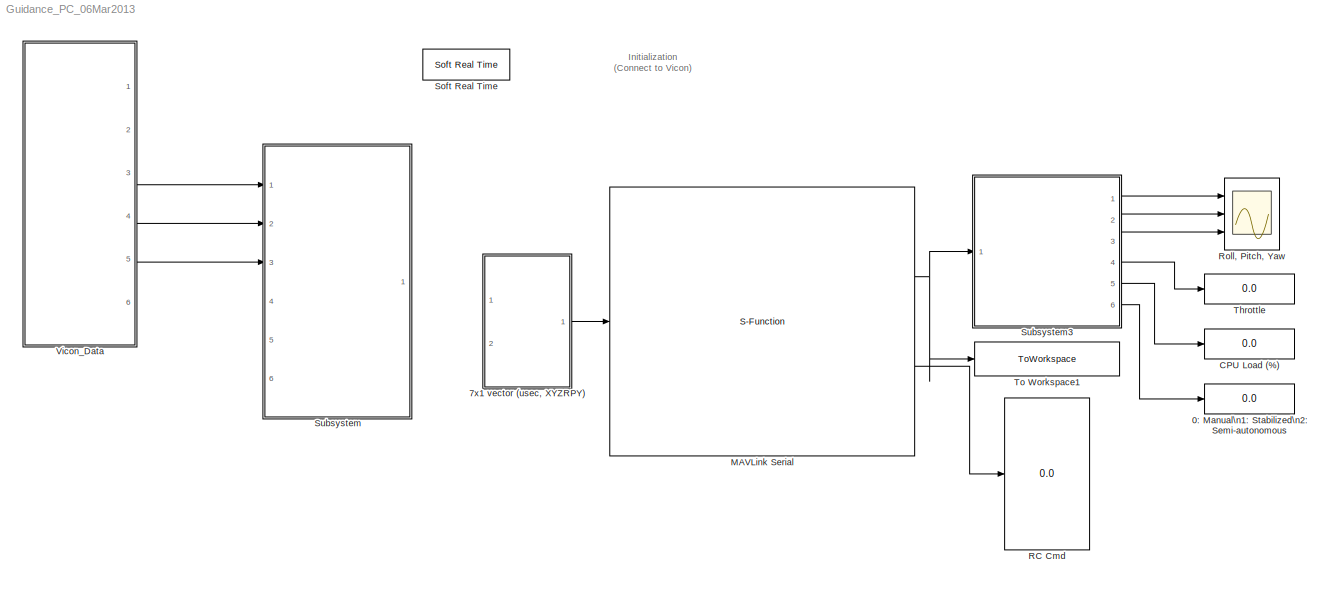
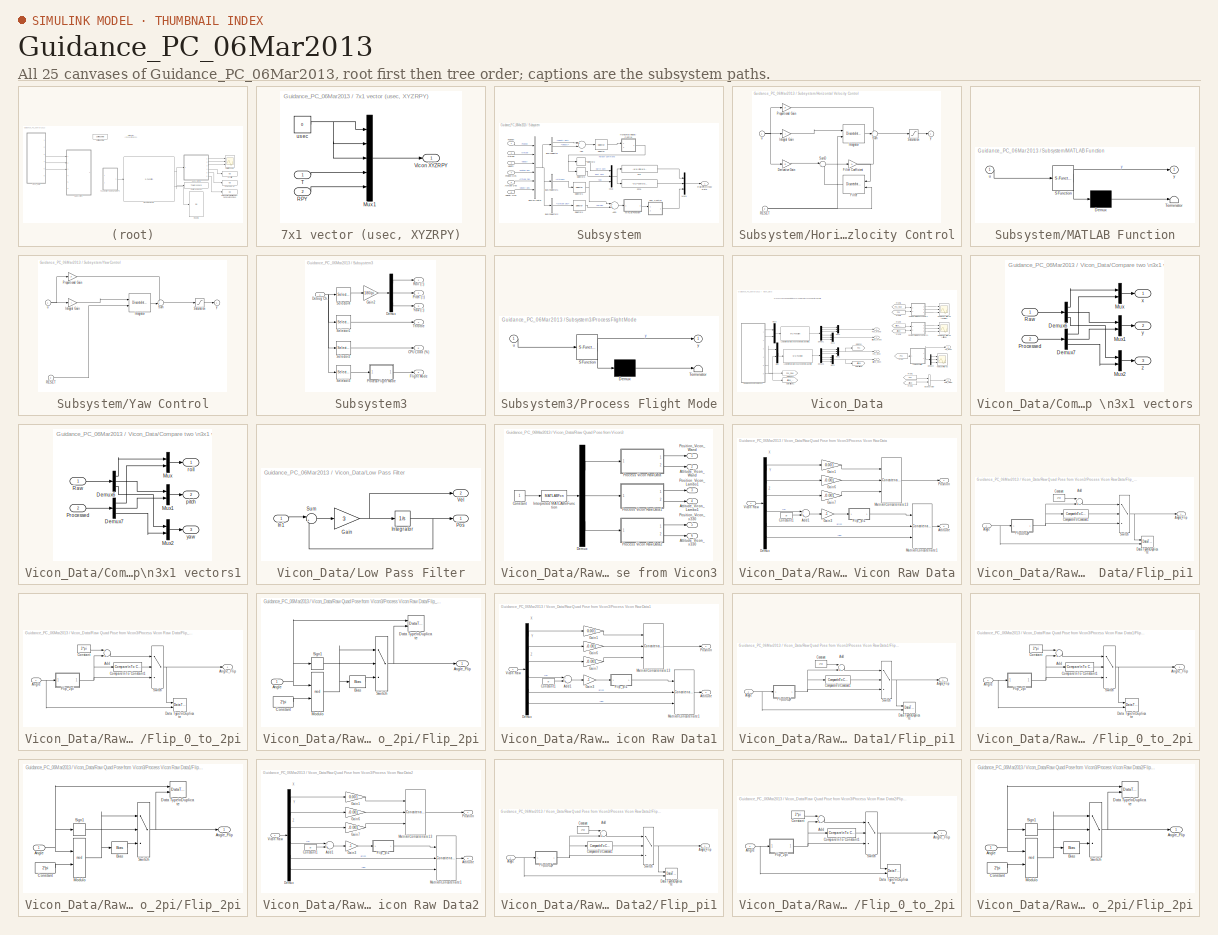
[diagram: thumbnail index - all 25 canvases of the model, root first then tree order]
MODEL Guidance_PC_06Mar2013
KIND model
CONFIG InitFcn = sample_time=0.02;
BLOCK [Display] 0: Manual\n1: Stabilized\n2: Semi-autonomous
  Decimation = 1
  Lockdown = off
  Ports = [1]
  SID = 1565
BLOCK [SubSystem] 7x1 vector (usec, XYZRPY)
  FunctionWithSeparateData = off
  MaskHideContents = off
  MinAlgLoopOccurrences = off
  Opaque = off
  Ports = [2, 1]
  PropExecContextOutsideSubsystem = off
  RTWSystemCode = Auto
  RequestExecContextInheritance = off
  SID = 543
BLOCK [Mux] 7x1 vector (usec, XYZRPY)/Mux1
  DisplayOption = bar
  Inputs = 5
  Ports = [5, 1]
  SID = 495
BLOCK [Inport] 7x1 vector (usec, XYZRPY)/RPY
  IconDisplay = Port number
  Port = 2
  SID = 546
BLOCK [Inport] 7x1 vector (usec, XYZRPY)/T
  IconDisplay = Port number
  SID = 544
BLOCK [Outport] 7x1 vector (usec, XYZRPY)/Vicon XYZRPY
  IconDisplay = Port number
  SID = 545
BLOCK [Constant] 7x1 vector (usec, XYZRPY)/usec
  SID = 496
  Value = 0
BLOCK [Display] CPU Load (%)
  Decimation = 1
  Lockdown = off
  Ports = [1]
  SID = 1566
BLOCK [S-Function] MAVLink Serial
  EnableBusSupport = off
  FunctionName = MAVLink_Interface
  MaskCallbackString = ||||||||||||||||||
  MaskDisplay = % Block image\nimage(imread('10-inch Quad Heat Map.png'));\n\n%Label block\nfprintf('MAVLink Serial\\n%s\\n%dbps', COM_Port,  Baud_Rate)\n\n\n%Label input ports\n\nin = 1;\nif (SET_MODE == 1)\n    port_label('input', in, 'SET MODE');\n    in = in + 1;\nend\nif (DATA_STREAM == 1)\n    port_label('input', in, 'REQUEST DATA STREAM');\n    in = in + 1;\nend\nif (ATTITUDE_COMMAND == 1)\n    port_label(...<+1431ch>
  MaskEnableString = on,on,on,on,on,on,on,on,on,on,on,on,on,on,on,on,on,on,on
  MaskIconFrame = on
  MaskIconOpaque = off
  MaskIconRotate = none
  MaskIconUnits = autoscale
  MaskInitialization = MSG_ID_NUM_INPUT = [uint8(11) uint8(66) uint8(59) uint8(30) uint8(32) uint8(73) uint8(104) uint8(103) uint8(50)];\nMSG_ID_NAME_INPUT = [SET_MODE DATA_STREAM ATTITUDE_COMMAND ATTITUDE_IN GPS_RAW_IN VFR_HUD_IN VICON_XYZ_RPY VICON_VEL POSITION_DESIRED];\n\nMSG_ID_NUM_OUTPUT = [uint8(0) uint8(30) uint8(27) uint8(73) uint8(74) uint8(34) uint8(37) uint8(104)];\nMSG_ID_NAME_OUTPUT = [HEART_BEAT ATTITUDE_...<+248ch>
  MaskPortRotate = default
  MaskPromptString = COM Port|Baud Rate|HEART BEAT|ATTITUDE|RAW IMU|GLOBAL POSITION |VFR HUD|RC CHANNELS SCALED|SERVO OUTPUT RAW|VICON Output|SET MODE|REQUEST DATA STREAM|ATTITUDE COMMAND|ATTITUDE (HIL)|GPS RAW (HIL)|AIRSPEED (HIL)|VICON POSITION|VICON SPEED|Position Desired
  MaskStyleString = edit,edit,checkbox,checkbox,checkbox,checkbox,checkbox,checkbox,checkbox,checkbox,checkbox,checkbox,checkbox,checkbox,checkbox,checkbox,checkbox,checkbox,checkbox
  MaskTabNameString = Setting,Setting,Output Message,Output Message,Output Message,Output Message,Output Message,Output Message,Output Message,Output Message,Input Message,Input Message,Input Message,Input Message,Input Message,Input Message,Input Message,Input Message,Input Message
  MaskToolTipString = on,on,on,on,on,on,on,on,on,on,on,on,on,on,on,on,on,on,on
  MaskTunableValueString = on,on,on,on,on,on,on,on,on,on,on,on,on,on,on,on,on,on,on
  MaskValueString = 'COM8'|57600|off|on|off|off|off|on|off|off|off|off|off|off|off|off|on|off|off
  MaskVariables = COM_Port=@1;Baud_Rate=@2;HEART_BEAT=@3;ATTITUDE_OUT=@4;RAW_IMU=@5;POSITION_OUT=@6;VFR_HUD=@7;RC_SCALED=@8;SERVO_OUT_RAW=@9;VICON_XYZ_RPY_Output=@10;SET_MODE=@11;DATA_STREAM=@12;ATTITUDE_COMMAND=@13;ATTITUDE_IN=@14;GPS_RAW_IN=@15;VFR_HUD_IN=@16;VICON_XYZ_RPY=@17;VICON_VEL=@18;POSITION_DESIRED=@19;
  MaskVisibilityString = on,on,on,on,on,on,on,on,on,on,on,on,on,on,on,on,on,on,on
  Parameters = COM_Port,Baud_Rate,MSG_INPUT,MSG_OUTPUT
  Ports = [1, 2]
  SID = 1567
BLOCK [Display] RC Cmd
  Decimation = 1
  Lockdown = off
  Ports = [1]
  SID = 1568
BLOCK [Scope] Roll, Pitch, Yaw
  DataFormat = StructureWithTime
  Floating = off
  LimitDataPoints = off
  NumInputPorts = 3
  Ports = [3]
  SID = 1569
  SampleInput = on
  SampleTime = 0
  TickLabels = on
  TimeRange = 60
  YMax = 1.2~-0.7~-38.2
  YMin = 0.55~-0.9~-38.525
  ZoomMode = xonly
BLOCK [Reference] Soft Real Time  REF=utility/Soft Real Time  (lib defined in slx_8818c3a16fdf)
  Ports = []
  SID = 49
  SourceBlock = utility/Soft Real Time
  x = 0.8
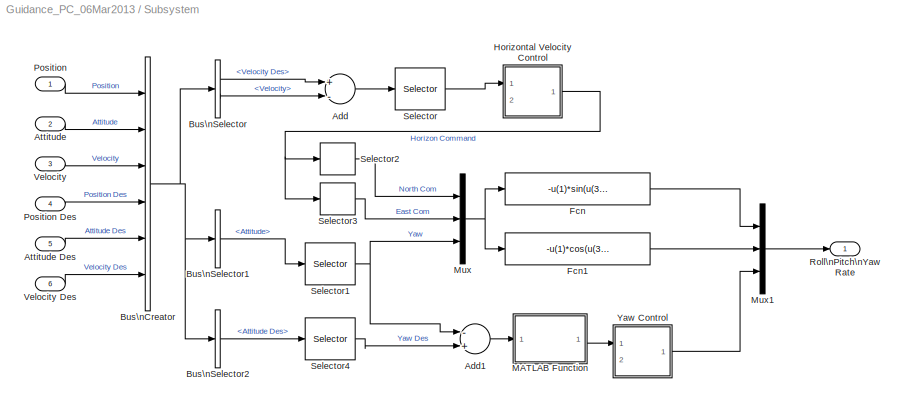
BLOCK [SubSystem] Subsystem
  FunctionWithSeparateData = off
  MaskHideContents = off
  MinAlgLoopOccurrences = off
  Opaque = off
  Ports = [6, 1]
  PropExecContextOutsideSubsystem = off
  RTWSystemCode = Auto
  RequestExecContextInheritance = off
  SID = 1588
BLOCK [Sum] Subsystem/Add
  InputSameDT = off
  Inputs = +-
  OutDataTypeStr = Inherit: Inherit via internal rule
  Ports = [2, 1]
  SID = 1600
  SaturateOnIntegerOverflow = off
BLOCK [Sum] Subsystem/Add1
  InputSameDT = off
  Inputs = -+
  OutDataTypeStr = Inherit: Inherit via internal rule
  Ports = [2, 1]
  SID = 1614
  SaturateOnIntegerOverflow = off
BLOCK [Inport] Subsystem/Attitude
  IconDisplay = Port number
  Port = 2
  SID = 1590
BLOCK [Inport] Subsystem/Attitude Des
  IconDisplay = Port number
  Port = 5
  SID = 1593
BLOCK [BusCreator] Subsystem/Bus\nCreator
  DisplayOption = bar
  Inputs = 6
  Ports = [6, 1]
  SID = 1595
BLOCK [BusSelector] Subsystem/Bus\nSelector
  OutputSignals = Velocity Des,Velocity
  Ports = [1, 2]
  SID = 1597
BLOCK [BusSelector] Subsystem/Bus\nSelector1
  OutputSignals = Attitude
  Ports = [1, 1]
  SID = 1604
BLOCK [BusSelector] Subsystem/Bus\nSelector2
  OutputSignals = Attitude Des
  Ports = [1, 1]
  SID = 1611
BLOCK [Fcn] Subsystem/Fcn
  Expr = -u(1)*sin(u(3)) + u(2)*cos(u(3))
  SID = 1608
BLOCK [Fcn] Subsystem/Fcn1
  Expr = -u(1)*cos(u(3)) - u(2)*sin(u(3))
  SID = 1610
BLOCK [SubSystem] Subsystem/Horizontal Velocity Control
  AncestorBlock = simulink/Continuous/PID Controller
  DeleteFcn = pidpack.PIDConfig.closeTuner(gcbh)
  DialogController = pidpack.PIDConfig.pidDDGCreate
  DialogControllerArgs = DataTag0
  FunctionWithSeparateData = off
  MaskCallbackString = |||||||||||||||||||||||||||||||||||||||||||||||||||||||||||||||||||||||||||||||||||||||||||||||||||||
  MaskCapabilities = slmaskedcaps(gcbh)
  MaskDescription = This block implements continuous- and discrete-time PID control algorithms and includes advanced features such as anti-windup, external reset, and signal tracking. You can tune the PID gains automatically using the 'Tune...' button (requires Simulink Control Design).
  MaskDisplay = disp('PID(z)')\nport_label('input',1, '');\nport_label('output',1, '');plot([0 4 4 7]+2,[0 0 8 8]+8);\nplot([1 4 6]+2,[3 6 3]+8);\nplot([0 4 6 10]+42,[0 0 8 8]+18);\n
  MaskEnableString = on,on,on,on,on,on,on,on,on,on,on,on,on,on,on,on,on,off,off,off,off,off,on,off,on,on,on,on,on,on,on,on,on,on,on,on,on,on,on,on,on,on,on,on,on,on,on,on,on,on,on,on,on,on,on,on,on,on,on,on,on,on,on,on,on,on,on,on,on,on,on,on,on,on,on,on,on,on,on,on,on,on,on,on,on,on,on,on,on,on,on,on,on,on,off,off,off,on,on,off,off,off
  MaskHideContents = off
  MaskIconFrame = on
  MaskIconOpaque = on
  MaskIconRotate = none
  MaskIconUnits = pixels
  MaskInitialization = pidpack.PIDConfig.configPID(gcbh);
  MaskPortRotate = default
  MaskPromptString = Controller:|Time domain:|Sample time (-1 for inherited):|Integrator method:|Filter method:|Form:|Proportional (P):|Integral (I):|Derivative (D):|Filter coefficient (N):|Source:|Integrator:|Filter:|External reset:|Ignore reset when linearizing|Enable zero-crossing detection|Limit output|Upper saturation limit:|Lower saturation limit:|Ignore saturation when linearizing|Anti-windup method:|Back-calcu...<+1875ch>
  MaskRunInitForIconRedraw = on
  MaskSelfModifiable = on
  MaskStyleString = popup(PID|PI|PD|P|I),popup(Continuous-time|Discrete-time),edit,popup(Forward Euler|Backward Euler|Trapezoidal),popup(Forward Euler|Backward Euler|Trapezoidal),popup(Ideal|Parallel),edit,edit,edit,edit,popup(internal|external),edit,edit,popup(none|rising|falling|either|level),checkbox,checkbox,checkbox,edit,edit,checkbox,popup(none|back-calculation|clamping),edit,checkbox,edit,popup(Ceiling|Converg...<+6354ch>
  MaskToolTipString = on,on,on,on,on,on,on,on,on,on,on,on,on,on,on,on,on,on,on,on,on,on,on,on,on,on,on,on,on,on,on,on,on,on,on,on,on,on,on,on,on,on,on,on,on,on,on,on,on,on,on,on,on,on,on,on,on,on,on,on,on,on,on,on,on,on,on,on,on,on,on,on,on,on,on,on,on,on,on,on,on,on,on,on,on,on,on,on,on,on,on,on,on,on,on,on,on,on,on,on,on,on
  MaskTunableValueString = off,off,off,off,off,off,on,on,on,on,off,off,off,off,off,off,off,off,off,off,off,on,off,on,off,off,off,off,off,off,off,off,off,off,off,off,off,off,off,off,off,off,off,off,off,off,off,off,off,off,off,off,off,off,off,off,off,off,off,off,off,off,off,off,off,off,off,off,off,off,off,off,off,off,off,off,off,off,off,off,off,off,off,off,off,off,off,off,off,off,off,off,off,off,off,off,off,off,off,off,off,of...<+1ch>
  MaskType = PID 1dof
  MaskValueString = PID|Discrete-time|0.02|Trapezoidal|Trapezoidal|Parallel|0.1|0.03|0|100|internal|0|0|rising|off|on|on|30*pi/180|-30*pi/180|off|none|1|off|1|Floor|off|off|[]|[]|double|[]|[]|double|[]|[]|double|[]|[]|Inherit: Inherit via internal rule|[]|[]|Inherit: Inherit via internal rule|[]|[]|Inherit: Inherit via internal rule|[]|[]|Inherit: Inherit via internal rule|[]|[]|Inherit: Inherit via internal rule|[]|...<+679ch>
  MaskVariables = Controller=&1;TimeDomain=&2;SampleTime=@3;IntegratorMethod=&4;FilterMethod=&5;Form=&6;P=@7;I=@8;D=@9;N=@10;InitialConditionSource=&11;InitialConditionForIntegrator=@12;InitialConditionForFilter=@13;ExternalReset=&14;IgnoreLimit=&15;ZeroCross=&16;LimitOutput=&17;UpperSaturationLimit=@18;LowerSaturationLimit=@19;LinearizeAsGain=&20;AntiWindupMode=&21;Kb=@22;TrackingMode=&23;Kt=@24;RndMeth=&25;Satura...<+1582ch>
  MaskVisibilityString = on,on,off,off,off,on,on,on,on,on,on,on,on,on,on,on,on,on,on,on,on,off,on,on,on,on,on,on,on,on,on,on,on,on,on,on,on,on,on,off,off,off,off,off,off,on,on,on,on,on,on,on,on,on,on,on,on,off,off,off,off,off,off,off,off,off,off,off,off,on,on,on,off,off,off,off,off,off,off,off,off,on,on,on,on,off,off,off,on,off,off,off,on,off,off,off,off,on,off,off,off,off
  MinAlgLoopOccurrences = off
  ModelCloseFcn = pidpack.PIDConfig.closeTuner(gcbh)
  NameChangeFcn = pidpack.PIDConfig.updateTunerName(gcbh)
  Opaque = off
  Ports = [2, 1]
  PropExecContextOutsideSubsystem = off
  RTWSystemCode = Auto
  RequestExecContextInheritance = off
  SID = 1602
BLOCK [Gain] Subsystem/Horizontal Velocity Control/Derivative Gain
  DisableCoverage = on
  Gain = D
  OutDataTypeStr = DOutDataTypeStr
  OutMax = DOutMax
  OutMin = DOutMin
  ParamDataTypeStr = DParamDataTypeStr
  ParamMax = DParamMax
  ParamMin = DParamMin
  SID = 1602:1676
  SaturateOnIntegerOverflow = off
BLOCK [DiscreteIntegrator] Subsystem/Horizontal Velocity Control/Filter
  DisableCoverage = on
  ExternalReset = rising
  ICPrevOutput = DiscIntNeverNeededParam
  ICPrevScaledInput = DiscIntNeverNeededParam
  InitialCondition = InitialConditionForFilter
  InitialConditionMode = State only (most efficient)
  InitialConditionSource = internal
  IntegratorMethod = Integration: Trapezoidal
  OutDataTypeStr = FilterOutDataTypeStr
  OutMax = FilterOutMax
  OutMin = FilterOutMin
  Ports = [2, 1]
  SID = 1602:1678
  SampleTime = -1
BLOCK [Gain] Subsystem/Horizontal Velocity Control/Filter Coefficient
  DisableCoverage = on
  Gain = N
  OutDataTypeStr = NOutDataTypeStr
  OutMax = NOutMax
  OutMin = NOutMin
  ParamDataTypeStr = NParamDataTypeStr
  ParamMax = NParamMax
  ParamMin = NParamMin
  SID = 1602:1679
  SaturateOnIntegerOverflow = off
BLOCK [Gain] Subsystem/Horizontal Velocity Control/Integral Gain
  DisableCoverage = on
  Gain = I
  OutDataTypeStr = IOutDataTypeStr
  OutMax = IOutMax
  OutMin = IOutMin
  ParamDataTypeStr = IParamDataTypeStr
  ParamMax = IParamMax
  ParamMin = IParamMin
  SID = 1602:1675
  SaturateOnIntegerOverflow = off
BLOCK [DiscreteIntegrator] Subsystem/Horizontal Velocity Control/Integrator
  DisableCoverage = on
  ExternalReset = rising
  ICPrevOutput = DiscIntNeverNeededParam
  ICPrevScaledInput = DiscIntNeverNeededParam
  InitialCondition = InitialConditionForIntegrator
  InitialConditionMode = State only (most efficient)
  InitialConditionSource = internal
  IntegratorMethod = Integration: Trapezoidal
  OutDataTypeStr = IntegratorOutDataTypeStr
  OutMax = IntegratorOutMax
  OutMin = IntegratorOutMin
  Ports = [2, 1]
  SID = 1602:1677
  SampleTime = -1
BLOCK [Gain] Subsystem/Horizontal Velocity Control/Proportional Gain
  DisableCoverage = on
  Gain = P
  OutDataTypeStr = POutDataTypeStr
  OutMax = POutMax
  OutMin = POutMin
  ParamDataTypeStr = PParamDataTypeStr
  ParamMax = PParamMax
  ParamMin = PParamMin
  SID = 1602:1674
  SaturateOnIntegerOverflow = off
BLOCK [Inport] Subsystem/Horizontal Velocity Control/RESET
  IconDisplay = Port number
  Port = 2
  SID = 1602:1672
  SampleTime = SampleTime
BLOCK [Saturate] Subsystem/Horizontal Velocity Control/Saturation
  InputPortMap = u0
  LinearizeAsGain = off
  LowerLimit = LowerSaturationLimit
  OutDataTypeStr = SaturationOutDataTypeStr
  OutMax = SaturationOutMax
  OutMin = SaturationOutMin
  Ports = [1, 1]
  SID = 1602:1681
  UpperLimit = UpperSaturationLimit
BLOCK [Sum] Subsystem/Horizontal Velocity Control/Sum
  AccumDataTypeStr = SumAccumDataTypeStr
  DisableCoverage = on
  IconShape = round
  InputSameDT = off
  Inputs = +++
  OutDataTypeStr = SumOutDataTypeStr
  OutMax = SumOutMax
  OutMin = SumOutMin
  Ports = [3, 1]
  SID = 1602:1673
  SaturateOnIntegerOverflow = off
BLOCK [Sum] Subsystem/Horizontal Velocity Control/SumD
  AccumDataTypeStr = SumDAccumDataTypeStr
  DisableCoverage = on
  IconShape = round
  InputSameDT = off
  Inputs = |+-
  OutDataTypeStr = SumDOutDataTypeStr
  OutMax = SumDOutMax
  OutMin = SumDOutMin
  Ports = [2, 1]
  SID = 1602:1680
  SaturateOnIntegerOverflow = off
BLOCK [Inport] Subsystem/Horizontal Velocity Control/u
  IconDisplay = Port number
  SID = 1602:1
  SampleTime = SampleTime
BLOCK [Outport] Subsystem/Horizontal Velocity Control/y
  IconDisplay = Port number
  InitialOutput = 0
  SID = 1602:10
BLOCK [SubSystem] Subsystem/MATLAB Function
  ErrorFcn = Stateflow.Translate.translate
  FunctionWithSeparateData = off
  MaskDescription = Embedded MATLAB block
  MaskDisplay = bgColor = Simulink.Root.ColorString2Rgb(get_param(gcbh, 'BackgroundColor')); image(imread('private/eml_membrane_16.png','png','BackgroundColor',bgColor(1:3)),'center'); disp([10 10 'fcn']);
  MaskHideContents = off
  MaskIconFrame = on
  MaskIconOpaque = off
  MaskIconRotate = none
  MaskIconUnits = normalized
  MaskPortRotate = default
  MaskSelfModifiable = on
  MaskType = Stateflow
  MinAlgLoopOccurrences = off
  Opaque = off
  PermitHierarchicalResolution = ExplicitOnly
  Ports = [1, 1]
  PropExecContextOutsideSubsystem = off
  RTWSystemCode = Auto
  RequestExecContextInheritance = off
  SID = 1615
  TreatAsAtomicUnit = on
BLOCK [Demux] Subsystem/MATLAB Function/ Demux 
  Outputs = 1
  Ports = [1, 1]
  SID = 1615::15
BLOCK [S-Function] Subsystem/MATLAB Function/ SFunction 
  EnableBusSupport = off
  FunctionName = sf_sfun
  PortCounts = [1 2]
  Ports = [1, 2]
  SID = 1615::14
  Tag = Stateflow S-Function Guidance_PC_06Mar2013 1
BLOCK [Terminator] Subsystem/MATLAB Function/ Terminator 
  SID = 1615::17
BLOCK [Inport] Subsystem/MATLAB Function/u
  IconDisplay = Port number
  SID = 1615::1
BLOCK [Outport] Subsystem/MATLAB Function/y
  IconDisplay = Port number
  SID = 1615::5
BLOCK [Mux] Subsystem/Mux
  DisplayOption = bar
  Inputs = 3
  Ports = [3, 1]
  SID = 1609
BLOCK [Mux] Subsystem/Mux1
  DisplayOption = bar
  Inputs = 3
  Ports = [3, 1]
  SID = 1617
BLOCK [Inport] Subsystem/Position
  IconDisplay = Port number
  SID = 1589
BLOCK [Inport] Subsystem/Position Des
  IconDisplay = Port number
  Port = 4
  SID = 1592
BLOCK [Outport] Subsystem/Roll\nPitch\nYaw Rate
  IconDisplay = Port number
  SID = 1616
BLOCK [Selector] Subsystem/Selector
  IndexOptions = Index vector (dialog)
  Indices = [1 2]
  InputPortWidth = 3
  OutputSizes = 1
  Ports = [1, 1]
  SID = 1603
BLOCK [Selector] Subsystem/Selector1
  IndexOptions = Index vector (dialog)
  Indices = [3]
  InputPortWidth = 3
  OutputSizes = 1
  Ports = [1, 1]
  SID = 1605
BLOCK [Selector] Subsystem/Selector2
  IndexOptions = Index vector (dialog)
  Indices = [1]
  InputPortWidth = 2
  OutputSizes = 1
  Ports = [1, 1]
  SID = 1606
BLOCK [Selector] Subsystem/Selector3
  IndexOptions = Index vector (dialog)
  Indices = [1]
  InputPortWidth = 2
  OutputSizes = 1
  Ports = [1, 1]
  SID = 1607
BLOCK [Selector] Subsystem/Selector4
  IndexOptions = Index vector (dialog)
  Indices = [3]
  InputPortWidth = 3
  OutputSizes = 1
  Ports = [1, 1]
  SID = 1612
BLOCK [Inport] Subsystem/Velocity
  IconDisplay = Port number
  Port = 3
  SID = 1591
BLOCK [Inport] Subsystem/Velocity Des
  IconDisplay = Port number
  Port = 6
  SID = 1594
BLOCK [SubSystem] Subsystem/Yaw Control
  AncestorBlock = simulink/Continuous/PID Controller
  DeleteFcn = pidpack.PIDConfig.closeTuner(gcbh)
  DialogController = pidpack.PIDConfig.pidDDGCreate
  DialogControllerArgs = DataTag1
  FunctionWithSeparateData = off
  MaskCallbackString = |||||||||||||||||||||||||||||||||||||||||||||||||||||||||||||||||||||||||||||||||||||||||||||||||||||
  MaskCapabilities = slmaskedcaps(gcbh)
  MaskDescription = This block implements continuous- and discrete-time PID control algorithms and includes advanced features such as anti-windup, external reset, and signal tracking. You can tune the PID gains automatically using the 'Tune...' button (requires Simulink Control Design).
  MaskDisplay = disp('PI(z)')\nport_label('input',1, '');\nport_label('output',1, '');plot([0 4 4 7]+2,[0 0 8 8]+8);\nplot([1 4 6]+2,[3 6 3]+8);\nplot([0 4 6 10]+42,[0 0 8 8]+18);\n
  MaskEnableString = on,on,on,on,on,on,on,on,on,on,on,on,on,on,on,on,on,off,off,off,off,off,on,off,on,on,on,on,on,on,on,on,on,on,on,on,on,on,on,on,on,on,on,on,on,on,on,on,on,on,on,on,on,on,on,on,on,on,on,on,on,on,on,on,on,on,on,on,on,on,on,on,on,on,on,on,on,on,on,on,on,on,on,on,on,on,on,on,on,on,on,on,on,on,off,off,off,on,on,off,off,off
  MaskHideContents = off
  MaskIconFrame = on
  MaskIconOpaque = on
  MaskIconRotate = none
  MaskIconUnits = pixels
  MaskInitialization = pidpack.PIDConfig.configPID(gcbh);
  MaskPortRotate = default
  MaskPromptString = Controller:|Time domain:|Sample time (-1 for inherited):|Integrator method:|Filter method:|Form:|Proportional (P):|Integral (I):|Derivative (D):|Filter coefficient (N):|Source:|Integrator:|Filter:|External reset:|Ignore reset when linearizing|Enable zero-crossing detection|Limit output|Upper saturation limit:|Lower saturation limit:|Ignore saturation when linearizing|Anti-windup method:|Back-calcu...<+1875ch>
  MaskRunInitForIconRedraw = on
  MaskSelfModifiable = on
  MaskStyleString = popup(PID|PI|PD|P|I),popup(Continuous-time|Discrete-time),edit,popup(Forward Euler|Backward Euler|Trapezoidal),popup(Forward Euler|Backward Euler|Trapezoidal),popup(Ideal|Parallel),edit,edit,edit,edit,popup(internal|external),edit,edit,popup(none|rising|falling|either|level),checkbox,checkbox,checkbox,edit,edit,checkbox,popup(none|back-calculation|clamping),edit,checkbox,edit,popup(Ceiling|Converg...<+6354ch>
  MaskToolTipString = on,on,on,on,on,on,on,on,on,on,on,on,on,on,on,on,on,on,on,on,on,on,on,on,on,on,on,on,on,on,on,on,on,on,on,on,on,on,on,on,on,on,on,on,on,on,on,on,on,on,on,on,on,on,on,on,on,on,on,on,on,on,on,on,on,on,on,on,on,on,on,on,on,on,on,on,on,on,on,on,on,on,on,on,on,on,on,on,on,on,on,on,on,on,on,on,on,on,on,on,on,on
  MaskTunableValueString = off,off,off,off,off,off,on,on,on,on,off,off,off,off,off,off,off,off,off,off,off,on,off,on,off,off,off,off,off,off,off,off,off,off,off,off,off,off,off,off,off,off,off,off,off,off,off,off,off,off,off,off,off,off,off,off,off,off,off,off,off,off,off,off,off,off,off,off,off,off,off,off,off,off,off,off,off,off,off,off,off,off,off,off,off,off,off,off,off,off,off,off,off,off,off,off,off,off,off,off,off,of...<+1ch>
  MaskType = PID 1dof
  MaskValueString = PI|Discrete-time|0.02|Trapezoidal|Trapezoidal|Parallel|2|2|0|100|internal|0|0|rising|off|on|on|300*pi/180|-300*pi/180|off|none|1|off|1|Floor|off|off|[]|[]|double|[]|[]|double|[]|[]|double|[]|[]|Inherit: Inherit via internal rule|[]|[]|Inherit: Inherit via internal rule|[]|[]|Inherit: Inherit via internal rule|[]|[]|Inherit: Inherit via internal rule|[]|[]|Inherit: Inherit via internal rule|[]|[]|I...<+675ch>
  MaskVariables = Controller=&1;TimeDomain=&2;SampleTime=@3;IntegratorMethod=&4;FilterMethod=&5;Form=&6;P=@7;I=@8;D=@9;N=@10;InitialConditionSource=&11;InitialConditionForIntegrator=@12;InitialConditionForFilter=@13;ExternalReset=&14;IgnoreLimit=&15;ZeroCross=&16;LimitOutput=&17;UpperSaturationLimit=@18;LowerSaturationLimit=@19;LinearizeAsGain=&20;AntiWindupMode=&21;Kb=@22;TrackingMode=&23;Kt=@24;RndMeth=&25;Satura...<+1582ch>
  MaskVisibilityString = on,on,off,off,off,on,on,on,on,on,on,on,on,on,on,on,on,on,on,on,on,off,on,on,on,on,on,on,on,on,on,on,on,on,on,on,on,on,on,off,off,off,off,off,off,on,on,on,on,on,on,on,on,on,on,on,on,off,off,off,off,off,off,off,off,off,off,off,off,on,on,on,off,off,off,off,off,off,off,off,off,on,on,on,on,off,off,off,on,off,off,off,on,off,off,off,off,on,off,off,off,off
  MinAlgLoopOccurrences = off
  ModelCloseFcn = pidpack.PIDConfig.closeTuner(gcbh)
  NameChangeFcn = pidpack.PIDConfig.updateTunerName(gcbh)
  Opaque = off
  Ports = [2, 1]
  PropExecContextOutsideSubsystem = off
  RTWSystemCode = Auto
  RequestExecContextInheritance = off
  SID = 1613
BLOCK [Gain] Subsystem/Yaw Control/Integral Gain
  DisableCoverage = on
  Gain = I
  OutDataTypeStr = IOutDataTypeStr
  OutMax = IOutMax
  OutMin = IOutMin
  ParamDataTypeStr = IParamDataTypeStr
  ParamMax = IParamMax
  ParamMin = IParamMin
  SID = 1613:1684
  SaturateOnIntegerOverflow = off
BLOCK [DiscreteIntegrator] Subsystem/Yaw Control/Integrator
  DisableCoverage = on
  ExternalReset = rising
  ICPrevOutput = DiscIntNeverNeededParam
  ICPrevScaledInput = DiscIntNeverNeededParam
  InitialCondition = InitialConditionForIntegrator
  InitialConditionMode = State only (most efficient)
  InitialConditionSource = internal
  IntegratorMethod = Integration: Trapezoidal
  OutDataTypeStr = IntegratorOutDataTypeStr
  OutMax = IntegratorOutMax
  OutMin = IntegratorOutMin
  Ports = [2, 1]
  SID = 1613:1685
  SampleTime = -1
BLOCK [Gain] Subsystem/Yaw Control/Proportional Gain
  DisableCoverage = on
  Gain = P
  OutDataTypeStr = POutDataTypeStr
  OutMax = POutMax
  OutMin = POutMin
  ParamDataTypeStr = PParamDataTypeStr
  ParamMax = PParamMax
  ParamMin = PParamMin
  SID = 1613:1683
  SaturateOnIntegerOverflow = off
BLOCK [Inport] Subsystem/Yaw Control/RESET
  IconDisplay = Port number
  Port = 2
  SID = 1613:1672
  SampleTime = SampleTime
BLOCK [Saturate] Subsystem/Yaw Control/Saturation
  InputPortMap = u0
  LinearizeAsGain = off
  LowerLimit = LowerSaturationLimit
  OutDataTypeStr = SaturationOutDataTypeStr
  OutMax = SaturationOutMax
  OutMin = SaturationOutMin
  Ports = [1, 1]
  SID = 1613:1686
  UpperLimit = UpperSaturationLimit
BLOCK [Sum] Subsystem/Yaw Control/Sum
  AccumDataTypeStr = SumAccumDataTypeStr
  DisableCoverage = on
  IconShape = round
  InputSameDT = off
  Inputs = ++|
  OutDataTypeStr = SumOutDataTypeStr
  OutMax = SumOutMax
  OutMin = SumOutMin
  Ports = [2, 1]
  SID = 1613:1682
  SaturateOnIntegerOverflow = off
BLOCK [Inport] Subsystem/Yaw Control/u
  IconDisplay = Port number
  SID = 1613:1
  SampleTime = SampleTime
BLOCK [Outport] Subsystem/Yaw Control/y
  IconDisplay = Port number
  InitialOutput = 0
  SID = 1613:10
BLOCK [SubSystem] Subsystem3
  FunctionWithSeparateData = off
  MaskHideContents = off
  MinAlgLoopOccurrences = off
  Opaque = off
  Ports = [1, 6]
  PropExecContextOutsideSubsystem = off
  RTWSystemCode = Auto
  RequestExecContextInheritance = off
  SID = 1570
BLOCK [Outport] Subsystem3/CPU Load (%)
  IconDisplay = Port number
  Port = 5
  SID = 1583
BLOCK [Inport] Subsystem3/Debug Ch.
  IconDisplay = Port number
  SID = 1571
BLOCK [Demux] Subsystem3/Demux
  DisplayOption = bar
  Outputs = 3
  Ports = [1, 3]
  SID = 1572
BLOCK [Outport] Subsystem3/Flight Mode
  IconDisplay = Port number
  Port = 6
  SID = 1584
BLOCK [Gain] Subsystem3/Gain2
  Gain = 180/pi
  OutDataTypeStr = Inherit: Inherit via internal rule
  ParamDataTypeStr = Inherit: Inherit via internal rule
  SID = 1573
  SaturateOnIntegerOverflow = off
BLOCK [Outport] Subsystem3/Pitch (º)
  IconDisplay = Port number
  Port = 2
  SID = 1580
BLOCK [SubSystem] Subsystem3/Process Flight Mode
  ErrorFcn = Stateflow.Translate.translate
  FunctionWithSeparateData = off
  MaskDescription = Embedded MATLAB block
  MaskDisplay = bgColor = Simulink.Root.ColorString2Rgb(get_param(gcbh, 'BackgroundColor')); image(imread('private/eml_membrane_16.png','png','BackgroundColor',bgColor(1:3)),'center'); disp([10 10 'fcn']);
  MaskHideContents = off
  MaskIconFrame = on
  MaskIconOpaque = off
  MaskIconRotate = none
  MaskIconUnits = normalized
  MaskPortRotate = default
  MaskSelfModifiable = on
  MaskType = Stateflow
  MinAlgLoopOccurrences = off
  Opaque = off
  PermitHierarchicalResolution = ExplicitOnly
  Ports = [1, 1]
  PropExecContextOutsideSubsystem = off
  RTWSystemCode = Auto
  RequestExecContextInheritance = off
  SID = 1574
  TreatAsAtomicUnit = on
BLOCK [Demux] Subsystem3/Process Flight Mode/ Demux 
  Outputs = 1
  Ports = [1, 1]
  SID = 1574::15
BLOCK [S-Function] Subsystem3/Process Flight Mode/ SFunction 
  EnableBusSupport = on
  FunctionName = sf_sfun
  PortCounts = [1 2]
  Ports = [1, 2]
  SID = 1574::14
  Tag = Stateflow S-Function Guidance_PC_06Mar2013 2
BLOCK [Terminator] Subsystem3/Process Flight Mode/ Terminator 
  SID = 1574::17
BLOCK [Inport] Subsystem3/Process Flight Mode/u
  IconDisplay = Port number
  SID = 1574::1
BLOCK [Outport] Subsystem3/Process Flight Mode/y
  IconDisplay = Port number
  SID = 1574::5
BLOCK [Outport] Subsystem3/Roll (º)
  IconDisplay = Port number
  SID = 1579
BLOCK [Selector] Subsystem3/Selector1
  IndexOptions = Index vector (dialog)
  Indices = 4
  InputPortWidth = 6
  OutputSizes = 1
  Ports = [1, 1]
  SID = 1575
BLOCK [Selector] Subsystem3/Selector2
  IndexOptions = Index vector (dialog)
  Indices = 5
  InputPortWidth = 6
  OutputSizes = 1
  Ports = [1, 1]
  SID = 1576
BLOCK [Selector] Subsystem3/Selector3
  IndexOptions = Index vector (dialog)
  Indices = 6
  InputPortWidth = 6
  OutputSizes = 1
  Ports = [1, 1]
  SID = 1577
BLOCK [Selector] Subsystem3/Selector4
  IndexOptions = Index vector (dialog)
  Indices = [1 2 3]
  InputPortWidth = 6
  OutputSizes = 1
  Ports = [1, 1]
  SID = 1578
BLOCK [Outport] Subsystem3/Throttle
  IconDisplay = Port number
  Port = 4
  SID = 1582
BLOCK [Outport] Subsystem3/Yaw (º)
  IconDisplay = Port number
  Port = 3
  SID = 1581
BLOCK [Display] Throttle
  Decimation = 1
  Lockdown = off
  Ports = [1]
  SID = 1585
BLOCK [ToWorkspace] To Workspace1
  MaxDataPoints = inf
  Ports = [1]
  SID = 1586
  SampleTime = -1
  SaveFormat = Structure With Time
  VariableName = Data_Logging
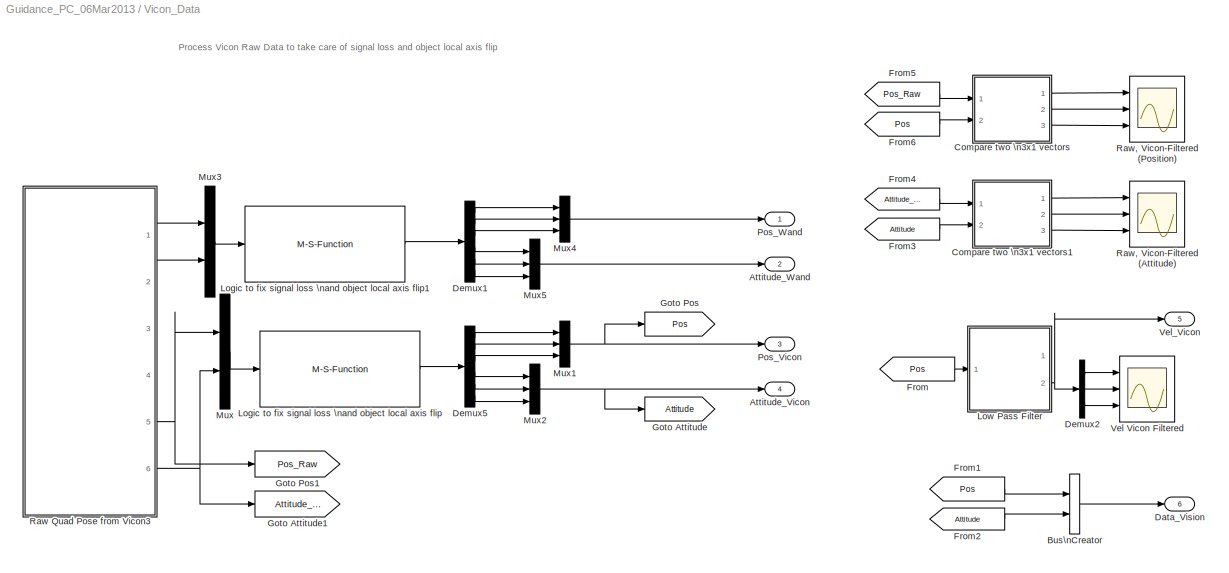
BLOCK [SubSystem] Vicon_Data
  FunctionWithSeparateData = off
  MaskHideContents = off
  MinAlgLoopOccurrences = off
  Opaque = off
  Ports = [0, 6]
  PropExecContextOutsideSubsystem = off
  RTWSystemCode = Auto
  RequestExecContextInheritance = off
  SID = 97
BLOCK [Outport] Vicon_Data/Attitude_Vicon
  IconDisplay = Port number
  Port = 4
  SID = 465
BLOCK [Outport] Vicon_Data/Attitude_Wand
  IconDisplay = Port number
  Port = 2
  SID = 1368
BLOCK [BusCreator] Vicon_Data/Bus\nCreator
  DisplayOption = bar
  Inputs = 2
  Ports = [2, 1]
  SID = 594
BLOCK [SubSystem] Vicon_Data/Compare two \n3x1 vectors
  FunctionWithSeparateData = off
  MaskHideContents = off
  MinAlgLoopOccurrences = off
  Opaque = off
  Ports = [2, 3]
  PropExecContextOutsideSubsystem = off
  RTWSystemCode = Auto
  RequestExecContextInheritance = off
  SID = 366
BLOCK [Demux] Vicon_Data/Compare two \n3x1 vectors/Demux6
  DisplayOption = bar
  Outputs = 3
  Ports = [1, 3]
  SID = 369
BLOCK [Demux] Vicon_Data/Compare two \n3x1 vectors/Demux7
  DisplayOption = bar
  Outputs = 3
  Ports = [1, 3]
  SID = 370
BLOCK [Mux] Vicon_Data/Compare two \n3x1 vectors/Mux
  DisplayOption = bar
  Inputs = 2
  Ports = [2, 1]
  SID = 371
BLOCK [Mux] Vicon_Data/Compare two \n3x1 vectors/Mux1
  DisplayOption = bar
  Inputs = 2
  Ports = [2, 1]
  SID = 372
BLOCK [Mux] Vicon_Data/Compare two \n3x1 vectors/Mux2
  DisplayOption = bar
  Inputs = 2
  Ports = [2, 1]
  SID = 373
BLOCK [Inport] Vicon_Data/Compare two \n3x1 vectors/Processed
  IconDisplay = Port number
  Port = 2
  SID = 368
BLOCK [Inport] Vicon_Data/Compare two \n3x1 vectors/Raw
  IconDisplay = Port number
  SID = 367
BLOCK [Outport] Vicon_Data/Compare two \n3x1 vectors/x
  IconDisplay = Port number
  SID = 374
BLOCK [Outport] Vicon_Data/Compare two \n3x1 vectors/y
  IconDisplay = Port number
  Port = 2
  SID = 375
BLOCK [Outport] Vicon_Data/Compare two \n3x1 vectors/z
  IconDisplay = Port number
  Port = 3
  SID = 376
BLOCK [SubSystem] Vicon_Data/Compare two \n3x1 vectors1
  FunctionWithSeparateData = off
  MaskHideContents = off
  MinAlgLoopOccurrences = off
  Opaque = off
  Ports = [2, 3]
  PropExecContextOutsideSubsystem = off
  RTWSystemCode = Auto
  RequestExecContextInheritance = off
  SID = 377
BLOCK [Demux] Vicon_Data/Compare two \n3x1 vectors1/Demux6
  DisplayOption = bar
  Outputs = 3
  Ports = [1, 3]
  SID = 380
BLOCK [Demux] Vicon_Data/Compare two \n3x1 vectors1/Demux7
  DisplayOption = bar
  Outputs = 3
  Ports = [1, 3]
  SID = 381
BLOCK [Mux] Vicon_Data/Compare two \n3x1 vectors1/Mux
  DisplayOption = bar
  Inputs = 2
  Ports = [2, 1]
  SID = 382
BLOCK [Mux] Vicon_Data/Compare two \n3x1 vectors1/Mux1
  DisplayOption = bar
  Inputs = 2
  Ports = [2, 1]
  SID = 383
BLOCK [Mux] Vicon_Data/Compare two \n3x1 vectors1/Mux2
  DisplayOption = bar
  Inputs = 2
  Ports = [2, 1]
  SID = 384
BLOCK [Inport] Vicon_Data/Compare two \n3x1 vectors1/Processed
  IconDisplay = Port number
  Port = 2
  SID = 379
BLOCK [Inport] Vicon_Data/Compare two \n3x1 vectors1/Raw
  IconDisplay = Port number
  SID = 378
BLOCK [Outport] Vicon_Data/Compare two \n3x1 vectors1/pitch
  IconDisplay = Port number
  Port = 2
  SID = 386
BLOCK [Outport] Vicon_Data/Compare two \n3x1 vectors1/roll
  IconDisplay = Port number
  SID = 385
BLOCK [Outport] Vicon_Data/Compare two \n3x1 vectors1/yaw
  IconDisplay = Port number
  Port = 3
  SID = 387
BLOCK [Outport] Vicon_Data/Data_Vision
  IconDisplay = Port number
  Port = 6
  SID = 466
BLOCK [Demux] Vicon_Data/Demux1
  DisplayOption = bar
  Outputs = 6
  Ports = [1, 6]
  SID = 1319
BLOCK [Demux] Vicon_Data/Demux2
  DisplayOption = bar
  Outputs = 3
  Ports = [1, 3]
  SID = 388
BLOCK [Demux] Vicon_Data/Demux5
  DisplayOption = bar
  Outputs = 6
  Ports = [1, 6]
  SID = 390
BLOCK [From] Vicon_Data/From
  GotoTag = Pos
  SID = 393
BLOCK [From] Vicon_Data/From1
  GotoTag = Pos
  SID = 592
BLOCK [From] Vicon_Data/From2
  GotoTag = Attitude
  SID = 593
BLOCK [From] Vicon_Data/From3
  GotoTag = Attitude
  SID = 483
BLOCK [From] Vicon_Data/From4
  GotoTag = Attitude_Raw
  SID = 484
BLOCK [From] Vicon_Data/From5
  GotoTag = Pos_Raw
  SID = 485
BLOCK [From] Vicon_Data/From6
  GotoTag = Pos
  SID = 486
BLOCK [Goto] Vicon_Data/Goto Attitude
  GotoTag = Attitude
  SID = 397
  TagVisibility = local
BLOCK [Goto] Vicon_Data/Goto Attitude1
  GotoTag = Attitude_Raw
  SID = 481
  TagVisibility = local
BLOCK [Goto] Vicon_Data/Goto Pos
  GotoTag = Pos
  SID = 396
  TagVisibility = local
BLOCK [Goto] Vicon_Data/Goto Pos1
  GotoTag = Pos_Raw
  SID = 480
  TagVisibility = local
BLOCK [M-S-Function] Vicon_Data/Logic to fix signal loss \nand object local axis flip
  FunctionName = Vicon_Filter
  Ports = [1, 1]
  SID = 398
BLOCK [M-S-Function] Vicon_Data/Logic to fix signal loss \nand object local axis flip1
  FunctionName = Vicon_Filter
  Ports = [1, 1]
  SID = 1324
BLOCK [SubSystem] Vicon_Data/Low Pass Filter
  FunctionWithSeparateData = off
  MaskHideContents = off
  MinAlgLoopOccurrences = off
  Opaque = off
  Ports = [1, 2]
  PropExecContextOutsideSubsystem = off
  RTWSystemCode = Auto
  RequestExecContextInheritance = off
  SID = 399
BLOCK [Gain] Vicon_Data/Low Pass Filter/Gain
  Gain = 3
  OutDataTypeStr = Inherit: Inherit via internal rule
  ParamDataTypeStr = Inherit: Inherit via internal rule
  SID = 401
  SaturateOnIntegerOverflow = off
BLOCK [Inport] Vicon_Data/Low Pass Filter/In1
  IconDisplay = Port number
  SID = 400
BLOCK [Integrator] Vicon_Data/Low Pass Filter/Integrator
  Ports = [1, 1]
  SID = 402
BLOCK [Outport] Vicon_Data/Low Pass Filter/Pos
  IconDisplay = Port number
  SID = 404
BLOCK [Sum] Vicon_Data/Low Pass Filter/Sum
  IconShape = round
  InputSameDT = off
  Inputs = |+-
  OutDataTypeStr = Inherit: Inherit via internal rule
  Ports = [2, 1]
  SID = 403
  SaturateOnIntegerOverflow = off
BLOCK [Outport] Vicon_Data/Low Pass Filter/Vel
  IconDisplay = Port number
  Port = 2
  SID = 405
BLOCK [Mux] Vicon_Data/Mux
  DisplayOption = bar
  Inputs = 2
  Ports = [2, 1]
  SID = 413
BLOCK [Mux] Vicon_Data/Mux1
  DisplayOption = bar
  Inputs = 3
  Ports = [3, 1]
  SID = 414
BLOCK [Mux] Vicon_Data/Mux2
  DisplayOption = bar
  Inputs = 3
  Ports = [3, 1]
  SID = 415
BLOCK [Mux] Vicon_Data/Mux3
  DisplayOption = bar
  Inputs = 2
  Ports = [2, 1]
  SID = 1325
BLOCK [Mux] Vicon_Data/Mux4
  DisplayOption = bar
  Inputs = 3
  Ports = [3, 1]
  SID = 1326
BLOCK [Mux] Vicon_Data/Mux5
  DisplayOption = bar
  Inputs = 3
  Ports = [3, 1]
  SID = 1327
BLOCK [Outport] Vicon_Data/Pos_Vicon
  IconDisplay = Port number
  Port = 3
  SID = 464
BLOCK [Outport] Vicon_Data/Pos_Wand
  IconDisplay = Port number
  SID = 1367
BLOCK [SubSystem] Vicon_Data/Raw Quad Pose from Vicon3
  FunctionWithSeparateData = off
  MaskHideContents = off
  MinAlgLoopOccurrences = off
  Opaque = off
  Ports = [0, 6]
  PropExecContextOutsideSubsystem = off
  RTWSystemCode = Auto
  RequestExecContextInheritance = off
  SID = 1387
BLOCK [Outport] Vicon_Data/Raw Quad Pose from Vicon3/Attitude_Vicon_Lambo1
  IconDisplay = Port number
  Port = 4
  SID = 1470
BLOCK [Outport] Vicon_Data/Raw Quad Pose from Vicon3/Attitude_Vicon_Wand
  IconDisplay = Port number
  Port = 2
  SID = 1425
BLOCK [Outport] Vicon_Data/Raw Quad Pose from Vicon3/Attitude_Vicon_x330
  IconDisplay = Port number
  Port = 6
  SID = 1510
BLOCK [Constant] Vicon_Data/Raw Quad Pose from Vicon3/Constant
  SID = 1389
BLOCK [Demux] Vicon_Data/Raw Quad Pose from Vicon3/Demux
  DisplayOption = bar
  Outputs = 3
  Ports = [1, 3]
  SID = 1557
BLOCK [MATLABFcn] Vicon_Data/Raw Quad Pose from Vicon3/Interpreted MATLAB\nFunction
  MATLABFcn = GetViconPose
  Ports = [1, 1]
  SID = 1556
BLOCK [Outport] Vicon_Data/Raw Quad Pose from Vicon3/Position_Vicon_Lambo1
  IconDisplay = Port number
  Port = 3
  SID = 1469
BLOCK [Outport] Vicon_Data/Raw Quad Pose from Vicon3/Position_Vicon_Wand
  IconDisplay = Port number
  SID = 1424
BLOCK [Outport] Vicon_Data/Raw Quad Pose from Vicon3/Position_Vicon_x330
  IconDisplay = Port number
  Port = 5
  SID = 1509
BLOCK [SubSystem] Vicon_Data/Raw Quad Pose from Vicon3/Process Vicon Raw Data
  FunctionWithSeparateData = off
  MaskHideContents = off
  MinAlgLoopOccurrences = off
  Opaque = off
  Ports = [1, 2]
  PropExecContextOutsideSubsystem = off
  RTWSystemCode = Auto
  RequestExecContextInheritance = off
  SID = 1426
BLOCK [Sum] Vicon_Data/Raw Quad Pose from Vicon3/Process Vicon Raw Data/Add1
  InputSameDT = off
  Inputs = -+
  OutDataTypeStr = Inherit: Inherit via internal rule
  Ports = [2, 1]
  SID = 1388
  SaturateOnIntegerOverflow = off
BLOCK [Outport] Vicon_Data/Raw Quad Pose from Vicon3/Process Vicon Raw Data/Attitude
  IconDisplay = Port number
  Port = 2
  SID = 1429
BLOCK [Constant] Vicon_Data/Raw Quad Pose from Vicon3/Process Vicon Raw Data/Constant1
  OutDataTypeStr = double
  SID = 1390
  Value = pi
BLOCK [Demux] Vicon_Data/Raw Quad Pose from Vicon3/Process Vicon Raw Data/Demux
  DisplayOption = bar
  Outputs = 6
  Ports = [1, 6]
  SID = 1391
BLOCK [SubSystem] Vicon_Data/Raw Quad Pose from Vicon3/Process Vicon Raw Data/Flip_pi1
  FunctionWithSeparateData = off
  MaskDescription = Flips the inputs into the range -pi to pi
  MaskDisplay = disp('Flip_pi')
  MaskHelp = Flips the inputs into the range -pi to pi
  MaskHideContents = off
  MaskIconFrame = on
  MaskIconOpaque = on
  MaskIconRotate = none
  MaskIconUnits = autoscale
  MaskPortRotate = default
  MaskType = Flip -pi to pi
  MinAlgLoopOccurrences = off
  Opaque = off
  Ports = [1, 1]
  PropExecContextOutsideSubsystem = off
  RTWSystemCode = Auto
  RequestExecContextInheritance = off
  SID = 1392
BLOCK [Sum] Vicon_Data/Raw Quad Pose from Vicon3/Process Vicon Raw Data/Flip_pi1/Add
  InputSameDT = off
  Inputs = -+
  OutDataTypeStr = Inherit: Inherit via internal rule
  Ports = [2, 1]
  SID = 1394
  SaturateOnIntegerOverflow = off
BLOCK [Inport] Vicon_Data/Raw Quad Pose from Vicon3/Process Vicon Raw Data/Flip_pi1/Angle
  IconDisplay = Port number
  SID = 1393
BLOCK [Outport] Vicon_Data/Raw Quad Pose from Vicon3/Process Vicon Raw Data/Flip_pi1/Angle_Flip
  IconDisplay = Port number
  SID = 1416
BLOCK [Reference] Vicon_Data/Raw Quad Pose from Vicon3/Process Vicon Raw Data/Flip_pi1/Compare\nTo Constant1  REF=simulink/Logic and Bit\nOperations/Compare\nTo Constant
  FunctionWithSeparateData = off
  GeneratePreprocessorConditionals = off
  LogicOutDataTypeMode = uint8
  Ports = [1, 1]
  RTWMemSecDataConstants = Inherit from model
  RTWMemSecDataInternal = Inherit from model
  RTWMemSecDataParameters = Inherit from model
  RTWMemSecFuncExecute = Inherit from model
  RTWMemSecFuncInitTerm = Inherit from model
  SID = 1395
  ShowPortLabels = FromPortIcon
  SourceBlock = simulink/Logic and Bit\nOperations/Compare\nTo Constant
  SourceType = Compare To Constant
  SystemSampleTime = -1
  ZeroCross = off
  const = pi
  relop = >
BLOCK [Constant] Vicon_Data/Raw Quad Pose from Vicon3/Process Vicon Raw Data/Flip_pi1/Constant
  SID = 1396
  Value = 2*pi
BLOCK [DataTypeDuplicate] Vicon_Data/Raw Quad Pose from Vicon3/Process Vicon Raw Data/Flip_pi1/Data Type\nDuplicate
  Ports = [2]
  SID = 1397
BLOCK [SubSystem] Vicon_Data/Raw Quad Pose from Vicon3/Process Vicon Raw Data/Flip_pi1/Flip_0_to_2pi
  FunctionWithSeparateData = off
  MaskDescription = Flips the inputs into the range zero to +2pi
  MaskDisplay = disp('Flip_0_2pi')
  MaskHelp = Flips the inputs into the range zero to +2pi
  MaskHideContents = off
  MaskIconFrame = on
  MaskIconOpaque = on
  MaskIconRotate = none
  MaskIconUnits = autoscale
  MaskPortRotate = default
  MaskType = Flip zero to 2pi
  MinAlgLoopOccurrences = off
  Opaque = off
  Ports = [1, 1]
  PropExecContextOutsideSubsystem = off
  RTWSystemCode = Auto
  RequestExecContextInheritance = off
  SID = 1398
BLOCK [Sum] Vicon_Data/Raw Quad Pose from Vicon3/Process Vicon Raw Data/Flip_pi1/Flip_0_to_2pi/Add
  InputSameDT = off
  OutDataTypeStr = Inherit: Inherit via internal rule
  Ports = [2, 1]
  SID = 1400
  SaturateOnIntegerOverflow = off
BLOCK [Inport] Vicon_Data/Raw Quad Pose from Vicon3/Process Vicon Raw Data/Flip_pi1/Flip_0_to_2pi/Angle
  IconDisplay = Port number
  SID = 1399
BLOCK [Outport] Vicon_Data/Raw Quad Pose from Vicon3/Process Vicon Raw Data/Flip_pi1/Flip_0_to_2pi/Angle_Flip
  IconDisplay = Port number
  SID = 1414
BLOCK [Reference] Vicon_Data/Raw Quad Pose from Vicon3/Process Vicon Raw Data/Flip_pi1/Flip_0_to_2pi/Compare\nTo Constant1  REF=simulink/Logic and Bit\nOperations/Compare\nTo Constant
  FunctionWithSeparateData = off
  GeneratePreprocessorConditionals = off
  LogicOutDataTypeMode = uint8
  Ports = [1, 1]
  RTWMemSecDataConstants = Inherit from model
  RTWMemSecDataInternal = Inherit from model
  RTWMemSecDataParameters = Inherit from model
  RTWMemSecFuncExecute = Inherit from model
  RTWMemSecFuncInitTerm = Inherit from model
  SID = 1401
  ShowPortLabels = FromPortIcon
  SourceBlock = simulink/Logic and Bit\nOperations/Compare\nTo Constant
  SourceType = Compare To Constant
  SystemSampleTime = -1
  ZeroCross = off
  const = 0
  relop = <
BLOCK [Constant] Vicon_Data/Raw Quad Pose from Vicon3/Process Vicon Raw Data/Flip_pi1/Flip_0_to_2pi/Constant
  SID = 1402
  Value = 2*pi
BLOCK [DataTypeDuplicate] Vicon_Data/Raw Quad Pose from Vicon3/Process Vicon Raw Data/Flip_pi1/Flip_0_to_2pi/Data Type\nDuplicate
  Ports = [2]
  SID = 1403
BLOCK [SubSystem] Vicon_Data/Raw Quad Pose from Vicon3/Process Vicon Raw Data/Flip_pi1/Flip_0_to_2pi/Flip_2pi
  FunctionWithSeparateData = off
  MaskDescription = Flips the inputs into the range -2pi to +2pi
  MaskDisplay = disp('Flip_2pi')
  MaskHelp = Flips the inputs into the range -2pi to +2pi
  MaskHideContents = off
  MaskIconFrame = on
  MaskIconOpaque = on
  MaskIconRotate = none
  MaskIconUnits = autoscale
  MaskPortRotate = default
  MaskType = Flip -2pi to 2pi
  MinAlgLoopOccurrences = off
  Opaque = off
  Ports = [1, 1]
  PropExecContextOutsideSubsystem = off
  RTWSystemCode = Auto
  RequestExecContextInheritance = off
  SID = 1404
BLOCK [Inport] Vicon_Data/Raw Quad Pose from Vicon3/Process Vicon Raw Data/Flip_pi1/Flip_0_to_2pi/Flip_2pi/Angle
  IconDisplay = Port number
  SID = 1405
BLOCK [Outport] Vicon_Data/Raw Quad Pose from Vicon3/Process Vicon Raw Data/Flip_pi1/Flip_0_to_2pi/Flip_2pi/Angle_Flip
  IconDisplay = Port number
  SID = 1412
BLOCK [Bias] Vicon_Data/Raw Quad Pose from Vicon3/Process Vicon Raw Data/Flip_pi1/Flip_0_to_2pi/Flip_2pi/Bias
  Bias = -2*pi
  SID = 1406
  SaturateOnIntegerOverflow = off
BLOCK [Constant] Vicon_Data/Raw Quad Pose from Vicon3/Process Vicon Raw Data/Flip_pi1/Flip_0_to_2pi/Flip_2pi/Constant
  SID = 1407
  Value = 2*pi
BLOCK [DataTypeDuplicate] Vicon_Data/Raw Quad Pose from Vicon3/Process Vicon Raw Data/Flip_pi1/Flip_0_to_2pi/Flip_2pi/Data Type\nDuplicate
  Ports = [2]
  SID = 1408
BLOCK [Math] Vicon_Data/Raw Quad Pose from Vicon3/Process Vicon Raw Data/Flip_pi1/Flip_0_to_2pi/Flip_2pi/Modulo
  Operator = mod
  Ports = [2, 1]
  SID = 1409
BLOCK [Signum] Vicon_Data/Raw Quad Pose from Vicon3/Process Vicon Raw Data/Flip_pi1/Flip_0_to_2pi/Flip_2pi/Sign1
  SID = 1410
BLOCK [Switch] Vicon_Data/Raw Quad Pose from Vicon3/Process Vicon Raw Data/Flip_pi1/Flip_0_to_2pi/Flip_2pi/Switch
  InputSameDT = off
  SID = 1411
  SaturateOnIntegerOverflow = off
BLOCK [Switch] Vicon_Data/Raw Quad Pose from Vicon3/Process Vicon Raw Data/Flip_pi1/Flip_0_to_2pi/Switch
  Criteria = u2 ~= 0
  InputSameDT = off
  SID = 1413
  SaturateOnIntegerOverflow = off
BLOCK [Switch] Vicon_Data/Raw Quad Pose from Vicon3/Process Vicon Raw Data/Flip_pi1/Switch
  Criteria = u2 ~= 0
  InputSameDT = off
  SID = 1415
  SaturateOnIntegerOverflow = off
BLOCK [Gain] Vicon_Data/Raw Quad Pose from Vicon3/Process Vicon Raw Data/Gain1
  Gain = 0.001
  OutDataTypeStr = Inherit: Inherit via internal rule
  ParamDataTypeStr = Inherit: Inherit via internal rule
  SID = 1417
  SaturateOnIntegerOverflow = off
BLOCK [Gain] Vicon_Data/Raw Quad Pose from Vicon3/Process Vicon Raw Data/Gain3
  Gain = -1
  OutDataTypeStr = Inherit: Inherit via internal rule
  ParamDataTypeStr = Inherit: Inherit via internal rule
  SID = 1418
  SaturateOnIntegerOverflow = off
BLOCK [Gain] Vicon_Data/Raw Quad Pose from Vicon3/Process Vicon Raw Data/Gain6
  Gain = -0.001
  OutDataTypeStr = Inherit: Inherit via internal rule
  ParamDataTypeStr = Inherit: Inherit via internal rule
  SID = 1419
  SaturateOnIntegerOverflow = off
BLOCK [Gain] Vicon_Data/Raw Quad Pose from Vicon3/Process Vicon Raw Data/Gain7
  Gain = -0.001
  OutDataTypeStr = Inherit: Inherit via internal rule
  ParamDataTypeStr = Inherit: Inherit via internal rule
  SID = 1420
  SaturateOnIntegerOverflow = off
BLOCK [Concatenate] Vicon_Data/Raw Quad Pose from Vicon3/Process Vicon Raw Data/Matrix\nConcatenate1
  Mode = Multidimensional array
  NumInputs = 3
  Ports = [3, 1]
  SID = 1422
BLOCK [Concatenate] Vicon_Data/Raw Quad Pose from Vicon3/Process Vicon Raw Data/Matrix\nConcatenate13
  Mode = Multidimensional array
  NumInputs = 3
  Ports = [3, 1]
  SID = 1423
BLOCK [Outport] Vicon_Data/Raw Quad Pose from Vicon3/Process Vicon Raw Data/Position
  IconDisplay = Port number
  SID = 1427
BLOCK [Inport] Vicon_Data/Raw Quad Pose from Vicon3/Process Vicon Raw Data/Vicon Raw
  IconDisplay = Port number
  SID = 1428
BLOCK [SubSystem] Vicon_Data/Raw Quad Pose from Vicon3/Process Vicon Raw Data1
  FunctionWithSeparateData = off
  MaskHideContents = off
  MinAlgLoopOccurrences = off
  Opaque = off
  Ports = [1, 2]
  PropExecContextOutsideSubsystem = off
  RTWSystemCode = Auto
  RequestExecContextInheritance = off
  SID = 1431
BLOCK [Sum] Vicon_Data/Raw Quad Pose from Vicon3/Process Vicon Raw Data1/Add1
  InputSameDT = off
  Inputs = -+
  OutDataTypeStr = Inherit: Inherit via internal rule
  Ports = [2, 1]
  SID = 1433
  SaturateOnIntegerOverflow = off
BLOCK [Outport] Vicon_Data/Raw Quad Pose from Vicon3/Process Vicon Raw Data1/Attitude
  IconDisplay = Port number
  Port = 2
  SID = 1468
BLOCK [Constant] Vicon_Data/Raw Quad Pose from Vicon3/Process Vicon Raw Data1/Constant1
  OutDataTypeStr = double
  SID = 1434
  Value = pi
BLOCK [Demux] Vicon_Data/Raw Quad Pose from Vicon3/Process Vicon Raw Data1/Demux
  DisplayOption = bar
  Outputs = 6
  Ports = [1, 6]
  SID = 1435
BLOCK [SubSystem] Vicon_Data/Raw Quad Pose from Vicon3/Process Vicon Raw Data1/Flip_pi1
  FunctionWithSeparateData = off
  MaskDescription = Flips the inputs into the range -pi to pi
  MaskDisplay = disp('Flip_pi')
  MaskHelp = Flips the inputs into the range -pi to pi
  MaskHideContents = off
  MaskIconFrame = on
  MaskIconOpaque = on
  MaskIconRotate = none
  MaskIconUnits = autoscale
  MaskPortRotate = default
  MaskType = Flip -pi to pi
  MinAlgLoopOccurrences = off
  Opaque = off
  Ports = [1, 1]
  PropExecContextOutsideSubsystem = off
  RTWSystemCode = Auto
  RequestExecContextInheritance = off
  SID = 1436
BLOCK [Sum] Vicon_Data/Raw Quad Pose from Vicon3/Process Vicon Raw Data1/Flip_pi1/Add
  InputSameDT = off
  Inputs = -+
  OutDataTypeStr = Inherit: Inherit via internal rule
  Ports = [2, 1]
  SID = 1438
  SaturateOnIntegerOverflow = off
BLOCK [Inport] Vicon_Data/Raw Quad Pose from Vicon3/Process Vicon Raw Data1/Flip_pi1/Angle
  IconDisplay = Port number
  SID = 1437
BLOCK [Outport] Vicon_Data/Raw Quad Pose from Vicon3/Process Vicon Raw Data1/Flip_pi1/Angle_Flip
  IconDisplay = Port number
  SID = 1460
BLOCK [Reference] Vicon_Data/Raw Quad Pose from Vicon3/Process Vicon Raw Data1/Flip_pi1/Compare\nTo Constant1  REF=simulink/Logic and Bit\nOperations/Compare\nTo Constant
  FunctionWithSeparateData = off
  GeneratePreprocessorConditionals = off
  LogicOutDataTypeMode = uint8
  Ports = [1, 1]
  RTWMemSecDataConstants = Inherit from model
  RTWMemSecDataInternal = Inherit from model
  RTWMemSecDataParameters = Inherit from model
  RTWMemSecFuncExecute = Inherit from model
  RTWMemSecFuncInitTerm = Inherit from model
  SID = 1439
  ShowPortLabels = FromPortIcon
  SourceBlock = simulink/Logic and Bit\nOperations/Compare\nTo Constant
  SourceType = Compare To Constant
  SystemSampleTime = -1
  ZeroCross = off
  const = pi
  relop = >
BLOCK [Constant] Vicon_Data/Raw Quad Pose from Vicon3/Process Vicon Raw Data1/Flip_pi1/Constant
  SID = 1440
  Value = 2*pi
BLOCK [DataTypeDuplicate] Vicon_Data/Raw Quad Pose from Vicon3/Process Vicon Raw Data1/Flip_pi1/Data Type\nDuplicate
  Ports = [2]
  SID = 1441
BLOCK [SubSystem] Vicon_Data/Raw Quad Pose from Vicon3/Process Vicon Raw Data1/Flip_pi1/Flip_0_to_2pi
  FunctionWithSeparateData = off
  MaskDescription = Flips the inputs into the range zero to +2pi
  MaskDisplay = disp('Flip_0_2pi')
  MaskHelp = Flips the inputs into the range zero to +2pi
  MaskHideContents = off
  MaskIconFrame = on
  MaskIconOpaque = on
  MaskIconRotate = none
  MaskIconUnits = autoscale
  MaskPortRotate = default
  MaskType = Flip zero to 2pi
  MinAlgLoopOccurrences = off
  Opaque = off
  Ports = [1, 1]
  PropExecContextOutsideSubsystem = off
  RTWSystemCode = Auto
  RequestExecContextInheritance = off
  SID = 1442
BLOCK [Sum] Vicon_Data/Raw Quad Pose from Vicon3/Process Vicon Raw Data1/Flip_pi1/Flip_0_to_2pi/Add
  InputSameDT = off
  OutDataTypeStr = Inherit: Inherit via internal rule
  Ports = [2, 1]
  SID = 1444
  SaturateOnIntegerOverflow = off
BLOCK [Inport] Vicon_Data/Raw Quad Pose from Vicon3/Process Vicon Raw Data1/Flip_pi1/Flip_0_to_2pi/Angle
  IconDisplay = Port number
  SID = 1443
BLOCK [Outport] Vicon_Data/Raw Quad Pose from Vicon3/Process Vicon Raw Data1/Flip_pi1/Flip_0_to_2pi/Angle_Flip
  IconDisplay = Port number
  SID = 1458
BLOCK [Reference] Vicon_Data/Raw Quad Pose from Vicon3/Process Vicon Raw Data1/Flip_pi1/Flip_0_to_2pi/Compare\nTo Constant1  REF=simulink/Logic and Bit\nOperations/Compare\nTo Constant
  FunctionWithSeparateData = off
  GeneratePreprocessorConditionals = off
  LogicOutDataTypeMode = uint8
  Ports = [1, 1]
  RTWMemSecDataConstants = Inherit from model
  RTWMemSecDataInternal = Inherit from model
  RTWMemSecDataParameters = Inherit from model
  RTWMemSecFuncExecute = Inherit from model
  RTWMemSecFuncInitTerm = Inherit from model
  SID = 1445
  ShowPortLabels = FromPortIcon
  SourceBlock = simulink/Logic and Bit\nOperations/Compare\nTo Constant
  SourceType = Compare To Constant
  SystemSampleTime = -1
  ZeroCross = off
  const = 0
  relop = <
BLOCK [Constant] Vicon_Data/Raw Quad Pose from Vicon3/Process Vicon Raw Data1/Flip_pi1/Flip_0_to_2pi/Constant
  SID = 1446
  Value = 2*pi
BLOCK [DataTypeDuplicate] Vicon_Data/Raw Quad Pose from Vicon3/Process Vicon Raw Data1/Flip_pi1/Flip_0_to_2pi/Data Type\nDuplicate
  Ports = [2]
  SID = 1447
BLOCK [SubSystem] Vicon_Data/Raw Quad Pose from Vicon3/Process Vicon Raw Data1/Flip_pi1/Flip_0_to_2pi/Flip_2pi
  FunctionWithSeparateData = off
  MaskDescription = Flips the inputs into the range -2pi to +2pi
  MaskDisplay = disp('Flip_2pi')
  MaskHelp = Flips the inputs into the range -2pi to +2pi
  MaskHideContents = off
  MaskIconFrame = on
  MaskIconOpaque = on
  MaskIconRotate = none
  MaskIconUnits = autoscale
  MaskPortRotate = default
  MaskType = Flip -2pi to 2pi
  MinAlgLoopOccurrences = off
  Opaque = off
  Ports = [1, 1]
  PropExecContextOutsideSubsystem = off
  RTWSystemCode = Auto
  RequestExecContextInheritance = off
  SID = 1448
BLOCK [Inport] Vicon_Data/Raw Quad Pose from Vicon3/Process Vicon Raw Data1/Flip_pi1/Flip_0_to_2pi/Flip_2pi/Angle
  IconDisplay = Port number
  SID = 1449
BLOCK [Outport] Vicon_Data/Raw Quad Pose from Vicon3/Process Vicon Raw Data1/Flip_pi1/Flip_0_to_2pi/Flip_2pi/Angle_Flip
  IconDisplay = Port number
  SID = 1456
BLOCK [Bias] Vicon_Data/Raw Quad Pose from Vicon3/Process Vicon Raw Data1/Flip_pi1/Flip_0_to_2pi/Flip_2pi/Bias
  Bias = -2*pi
  SID = 1450
  SaturateOnIntegerOverflow = off
BLOCK [Constant] Vicon_Data/Raw Quad Pose from Vicon3/Process Vicon Raw Data1/Flip_pi1/Flip_0_to_2pi/Flip_2pi/Constant
  SID = 1451
  Value = 2*pi
BLOCK [DataTypeDuplicate] Vicon_Data/Raw Quad Pose from Vicon3/Process Vicon Raw Data1/Flip_pi1/Flip_0_to_2pi/Flip_2pi/Data Type\nDuplicate
  Ports = [2]
  SID = 1452
BLOCK [Math] Vicon_Data/Raw Quad Pose from Vicon3/Process Vicon Raw Data1/Flip_pi1/Flip_0_to_2pi/Flip_2pi/Modulo
  Operator = mod
  Ports = [2, 1]
  SID = 1453
BLOCK [Signum] Vicon_Data/Raw Quad Pose from Vicon3/Process Vicon Raw Data1/Flip_pi1/Flip_0_to_2pi/Flip_2pi/Sign1
  SID = 1454
BLOCK [Switch] Vicon_Data/Raw Quad Pose from Vicon3/Process Vicon Raw Data1/Flip_pi1/Flip_0_to_2pi/Flip_2pi/Switch
  InputSameDT = off
  SID = 1455
  SaturateOnIntegerOverflow = off
BLOCK [Switch] Vicon_Data/Raw Quad Pose from Vicon3/Process Vicon Raw Data1/Flip_pi1/Flip_0_to_2pi/Switch
  Criteria = u2 ~= 0
  InputSameDT = off
  SID = 1457
  SaturateOnIntegerOverflow = off
BLOCK [Switch] Vicon_Data/Raw Quad Pose from Vicon3/Process Vicon Raw Data1/Flip_pi1/Switch
  Criteria = u2 ~= 0
  InputSameDT = off
  SID = 1459
  SaturateOnIntegerOverflow = off
BLOCK [Gain] Vicon_Data/Raw Quad Pose from Vicon3/Process Vicon Raw Data1/Gain1
  Gain = 0.001
  OutDataTypeStr = Inherit: Inherit via internal rule
  ParamDataTypeStr = Inherit: Inherit via internal rule
  SID = 1461
  SaturateOnIntegerOverflow = off
BLOCK [Gain] Vicon_Data/Raw Quad Pose from Vicon3/Process Vicon Raw Data1/Gain3
  Gain = -1
  OutDataTypeStr = Inherit: Inherit via internal rule
  ParamDataTypeStr = Inherit: Inherit via internal rule
  SID = 1462
  SaturateOnIntegerOverflow = off
BLOCK [Gain] Vicon_Data/Raw Quad Pose from Vicon3/Process Vicon Raw Data1/Gain6
  Gain = -0.001
  OutDataTypeStr = Inherit: Inherit via internal rule
  ParamDataTypeStr = Inherit: Inherit via internal rule
  SID = 1463
  SaturateOnIntegerOverflow = off
BLOCK [Gain] Vicon_Data/Raw Quad Pose from Vicon3/Process Vicon Raw Data1/Gain7
  Gain = -0.001
  OutDataTypeStr = Inherit: Inherit via internal rule
  ParamDataTypeStr = Inherit: Inherit via internal rule
  SID = 1464
  SaturateOnIntegerOverflow = off
BLOCK [Concatenate] Vicon_Data/Raw Quad Pose from Vicon3/Process Vicon Raw Data1/Matrix\nConcatenate1
  Mode = Multidimensional array
  NumInputs = 3
  Ports = [3, 1]
  SID = 1465
BLOCK [Concatenate] Vicon_Data/Raw Quad Pose from Vicon3/Process Vicon Raw Data1/Matrix\nConcatenate13
  Mode = Multidimensional array
  NumInputs = 3
  Ports = [3, 1]
  SID = 1466
BLOCK [Outport] Vicon_Data/Raw Quad Pose from Vicon3/Process Vicon Raw Data1/Position
  IconDisplay = Port number
  SID = 1467
BLOCK [Inport] Vicon_Data/Raw Quad Pose from Vicon3/Process Vicon Raw Data1/Vicon Raw
  IconDisplay = Port number
  SID = 1432
BLOCK [SubSystem] Vicon_Data/Raw Quad Pose from Vicon3/Process Vicon Raw Data2
  FunctionWithSeparateData = off
  MaskHideContents = off
  MinAlgLoopOccurrences = off
  Opaque = off
  Ports = [1, 2]
  PropExecContextOutsideSubsystem = off
  RTWSystemCode = Auto
  RequestExecContextInheritance = off
  SID = 1471
BLOCK [Sum] Vicon_Data/Raw Quad Pose from Vicon3/Process Vicon Raw Data2/Add1
  InputSameDT = off
  Inputs = -+
  OutDataTypeStr = Inherit: Inherit via internal rule
  Ports = [2, 1]
  SID = 1473
  SaturateOnIntegerOverflow = off
BLOCK [Outport] Vicon_Data/Raw Quad Pose from Vicon3/Process Vicon Raw Data2/Attitude
  IconDisplay = Port number
  Port = 2
  SID = 1508
BLOCK [Constant] Vicon_Data/Raw Quad Pose from Vicon3/Process Vicon Raw Data2/Constant1
  OutDataTypeStr = double
  SID = 1474
  Value = pi
BLOCK [Demux] Vicon_Data/Raw Quad Pose from Vicon3/Process Vicon Raw Data2/Demux
  DisplayOption = bar
  Outputs = 6
  Ports = [1, 6]
  SID = 1475
BLOCK [SubSystem] Vicon_Data/Raw Quad Pose from Vicon3/Process Vicon Raw Data2/Flip_pi1
  FunctionWithSeparateData = off
  MaskDescription = Flips the inputs into the range -pi to pi
  MaskDisplay = disp('Flip_pi')
  MaskHelp = Flips the inputs into the range -pi to pi
  MaskHideContents = off
  MaskIconFrame = on
  MaskIconOpaque = on
  MaskIconRotate = none
  MaskIconUnits = autoscale
  MaskPortRotate = default
  MaskType = Flip -pi to pi
  MinAlgLoopOccurrences = off
  Opaque = off
  Ports = [1, 1]
  PropExecContextOutsideSubsystem = off
  RTWSystemCode = Auto
  RequestExecContextInheritance = off
  SID = 1476
BLOCK [Sum] Vicon_Data/Raw Quad Pose from Vicon3/Process Vicon Raw Data2/Flip_pi1/Add
  InputSameDT = off
  Inputs = -+
  OutDataTypeStr = Inherit: Inherit via internal rule
  Ports = [2, 1]
  SID = 1478
  SaturateOnIntegerOverflow = off
BLOCK [Inport] Vicon_Data/Raw Quad Pose from Vicon3/Process Vicon Raw Data2/Flip_pi1/Angle
  IconDisplay = Port number
  SID = 1477
BLOCK [Outport] Vicon_Data/Raw Quad Pose from Vicon3/Process Vicon Raw Data2/Flip_pi1/Angle_Flip
  IconDisplay = Port number
  SID = 1500
BLOCK [Reference] Vicon_Data/Raw Quad Pose from Vicon3/Process Vicon Raw Data2/Flip_pi1/Compare\nTo Constant1  REF=simulink/Logic and Bit\nOperations/Compare\nTo Constant
  FunctionWithSeparateData = off
  GeneratePreprocessorConditionals = off
  LogicOutDataTypeMode = uint8
  Ports = [1, 1]
  RTWMemSecDataConstants = Inherit from model
  RTWMemSecDataInternal = Inherit from model
  RTWMemSecDataParameters = Inherit from model
  RTWMemSecFuncExecute = Inherit from model
  RTWMemSecFuncInitTerm = Inherit from model
  SID = 1479
  ShowPortLabels = FromPortIcon
  SourceBlock = simulink/Logic and Bit\nOperations/Compare\nTo Constant
  SourceType = Compare To Constant
  SystemSampleTime = -1
  ZeroCross = off
  const = pi
  relop = >
BLOCK [Constant] Vicon_Data/Raw Quad Pose from Vicon3/Process Vicon Raw Data2/Flip_pi1/Constant
  SID = 1480
  Value = 2*pi
BLOCK [DataTypeDuplicate] Vicon_Data/Raw Quad Pose from Vicon3/Process Vicon Raw Data2/Flip_pi1/Data Type\nDuplicate
  Ports = [2]
  SID = 1481
BLOCK [SubSystem] Vicon_Data/Raw Quad Pose from Vicon3/Process Vicon Raw Data2/Flip_pi1/Flip_0_to_2pi
  FunctionWithSeparateData = off
  MaskDescription = Flips the inputs into the range zero to +2pi
  MaskDisplay = disp('Flip_0_2pi')
  MaskHelp = Flips the inputs into the range zero to +2pi
  MaskHideContents = off
  MaskIconFrame = on
  MaskIconOpaque = on
  MaskIconRotate = none
  MaskIconUnits = autoscale
  MaskPortRotate = default
  MaskType = Flip zero to 2pi
  MinAlgLoopOccurrences = off
  Opaque = off
  Ports = [1, 1]
  PropExecContextOutsideSubsystem = off
  RTWSystemCode = Auto
  RequestExecContextInheritance = off
  SID = 1482
BLOCK [Sum] Vicon_Data/Raw Quad Pose from Vicon3/Process Vicon Raw Data2/Flip_pi1/Flip_0_to_2pi/Add
  InputSameDT = off
  OutDataTypeStr = Inherit: Inherit via internal rule
  Ports = [2, 1]
  SID = 1484
  SaturateOnIntegerOverflow = off
BLOCK [Inport] Vicon_Data/Raw Quad Pose from Vicon3/Process Vicon Raw Data2/Flip_pi1/Flip_0_to_2pi/Angle
  IconDisplay = Port number
  SID = 1483
BLOCK [Outport] Vicon_Data/Raw Quad Pose from Vicon3/Process Vicon Raw Data2/Flip_pi1/Flip_0_to_2pi/Angle_Flip
  IconDisplay = Port number
  SID = 1498
BLOCK [Reference] Vicon_Data/Raw Quad Pose from Vicon3/Process Vicon Raw Data2/Flip_pi1/Flip_0_to_2pi/Compare\nTo Constant1  REF=simulink/Logic and Bit\nOperations/Compare\nTo Constant
  FunctionWithSeparateData = off
  GeneratePreprocessorConditionals = off
  LogicOutDataTypeMode = uint8
  Ports = [1, 1]
  RTWMemSecDataConstants = Inherit from model
  RTWMemSecDataInternal = Inherit from model
  RTWMemSecDataParameters = Inherit from model
  RTWMemSecFuncExecute = Inherit from model
  RTWMemSecFuncInitTerm = Inherit from model
  SID = 1485
  ShowPortLabels = FromPortIcon
  SourceBlock = simulink/Logic and Bit\nOperations/Compare\nTo Constant
  SourceType = Compare To Constant
  SystemSampleTime = -1
  ZeroCross = off
  const = 0
  relop = <
BLOCK [Constant] Vicon_Data/Raw Quad Pose from Vicon3/Process Vicon Raw Data2/Flip_pi1/Flip_0_to_2pi/Constant
  SID = 1486
  Value = 2*pi
BLOCK [DataTypeDuplicate] Vicon_Data/Raw Quad Pose from Vicon3/Process Vicon Raw Data2/Flip_pi1/Flip_0_to_2pi/Data Type\nDuplicate
  Ports = [2]
  SID = 1487
BLOCK [SubSystem] Vicon_Data/Raw Quad Pose from Vicon3/Process Vicon Raw Data2/Flip_pi1/Flip_0_to_2pi/Flip_2pi
  FunctionWithSeparateData = off
  MaskDescription = Flips the inputs into the range -2pi to +2pi
  MaskDisplay = disp('Flip_2pi')
  MaskHelp = Flips the inputs into the range -2pi to +2pi
  MaskHideContents = off
  MaskIconFrame = on
  MaskIconOpaque = on
  MaskIconRotate = none
  MaskIconUnits = autoscale
  MaskPortRotate = default
  MaskType = Flip -2pi to 2pi
  MinAlgLoopOccurrences = off
  Opaque = off
  Ports = [1, 1]
  PropExecContextOutsideSubsystem = off
  RTWSystemCode = Auto
  RequestExecContextInheritance = off
  SID = 1488
BLOCK [Inport] Vicon_Data/Raw Quad Pose from Vicon3/Process Vicon Raw Data2/Flip_pi1/Flip_0_to_2pi/Flip_2pi/Angle
  IconDisplay = Port number
  SID = 1489
BLOCK [Outport] Vicon_Data/Raw Quad Pose from Vicon3/Process Vicon Raw Data2/Flip_pi1/Flip_0_to_2pi/Flip_2pi/Angle_Flip
  IconDisplay = Port number
  SID = 1496
BLOCK [Bias] Vicon_Data/Raw Quad Pose from Vicon3/Process Vicon Raw Data2/Flip_pi1/Flip_0_to_2pi/Flip_2pi/Bias
  Bias = -2*pi
  SID = 1490
  SaturateOnIntegerOverflow = off
BLOCK [Constant] Vicon_Data/Raw Quad Pose from Vicon3/Process Vicon Raw Data2/Flip_pi1/Flip_0_to_2pi/Flip_2pi/Constant
  SID = 1491
  Value = 2*pi
BLOCK [DataTypeDuplicate] Vicon_Data/Raw Quad Pose from Vicon3/Process Vicon Raw Data2/Flip_pi1/Flip_0_to_2pi/Flip_2pi/Data Type\nDuplicate
  Ports = [2]
  SID = 1492
BLOCK [Math] Vicon_Data/Raw Quad Pose from Vicon3/Process Vicon Raw Data2/Flip_pi1/Flip_0_to_2pi/Flip_2pi/Modulo
  Operator = mod
  Ports = [2, 1]
  SID = 1493
BLOCK [Signum] Vicon_Data/Raw Quad Pose from Vicon3/Process Vicon Raw Data2/Flip_pi1/Flip_0_to_2pi/Flip_2pi/Sign1
  SID = 1494
BLOCK [Switch] Vicon_Data/Raw Quad Pose from Vicon3/Process Vicon Raw Data2/Flip_pi1/Flip_0_to_2pi/Flip_2pi/Switch
  InputSameDT = off
  SID = 1495
  SaturateOnIntegerOverflow = off
BLOCK [Switch] Vicon_Data/Raw Quad Pose from Vicon3/Process Vicon Raw Data2/Flip_pi1/Flip_0_to_2pi/Switch
  Criteria = u2 ~= 0
  InputSameDT = off
  SID = 1497
  SaturateOnIntegerOverflow = off
BLOCK [Switch] Vicon_Data/Raw Quad Pose from Vicon3/Process Vicon Raw Data2/Flip_pi1/Switch
  Criteria = u2 ~= 0
  InputSameDT = off
  SID = 1499
  SaturateOnIntegerOverflow = off
BLOCK [Gain] Vicon_Data/Raw Quad Pose from Vicon3/Process Vicon Raw Data2/Gain1
  Gain = 0.001
  OutDataTypeStr = Inherit: Inherit via internal rule
  ParamDataTypeStr = Inherit: Inherit via internal rule
  SID = 1501
  SaturateOnIntegerOverflow = off
BLOCK [Gain] Vicon_Data/Raw Quad Pose from Vicon3/Process Vicon Raw Data2/Gain3
  Gain = -1
  OutDataTypeStr = Inherit: Inherit via internal rule
  ParamDataTypeStr = Inherit: Inherit via internal rule
  SID = 1502
  SaturateOnIntegerOverflow = off
BLOCK [Gain] Vicon_Data/Raw Quad Pose from Vicon3/Process Vicon Raw Data2/Gain6
  Gain = -0.001
  OutDataTypeStr = Inherit: Inherit via internal rule
  ParamDataTypeStr = Inherit: Inherit via internal rule
  SID = 1503
  SaturateOnIntegerOverflow = off
BLOCK [Gain] Vicon_Data/Raw Quad Pose from Vicon3/Process Vicon Raw Data2/Gain7
  Gain = -0.001
  OutDataTypeStr = Inherit: Inherit via internal rule
  ParamDataTypeStr = Inherit: Inherit via internal rule
  SID = 1504
  SaturateOnIntegerOverflow = off
BLOCK [Concatenate] Vicon_Data/Raw Quad Pose from Vicon3/Process Vicon Raw Data2/Matrix\nConcatenate1
  Mode = Multidimensional array
  NumInputs = 3
  Ports = [3, 1]
  SID = 1505
BLOCK [Concatenate] Vicon_Data/Raw Quad Pose from Vicon3/Process Vicon Raw Data2/Matrix\nConcatenate13
  Mode = Multidimensional array
  NumInputs = 3
  Ports = [3, 1]
  SID = 1506
BLOCK [Outport] Vicon_Data/Raw Quad Pose from Vicon3/Process Vicon Raw Data2/Position
  IconDisplay = Port number
  SID = 1507
BLOCK [Inport] Vicon_Data/Raw Quad Pose from Vicon3/Process Vicon Raw Data2/Vicon Raw
  IconDisplay = Port number
  SID = 1472
BLOCK [Scope] Vicon_Data/Raw, Vicon-Filtered (Attitude)
  DataFormat = StructureWithTime
  Floating = off
  LimitDataPoints = off
  NumInputPorts = 3
  Ports = [3]
  SID = 461
  SampleTime = 0
  SaveName = ScopeData4
  TimeRange = 50
  YMax = 3.14159~1~3.5
  YMin = -3.14159~-1~-3.5
  ZoomMode = yonly
BLOCK [Scope] Vicon_Data/Raw, Vicon-Filtered (Position)
  DataFormat = StructureWithTime
  Floating = off
  LimitDataPoints = off
  NumInputPorts = 3
  Ports = [3]
  SID = 462
  SampleTime = 0
  SaveName = ScopeData10
  TimeRange = 50
  YMax = -2.055~2.293~-0.063
  YMin = -2.09~2.281~-0.0655
  ZoomMode = yonly
BLOCK [Scope] Vicon_Data/Vel Vicon Filtered 
  DataFormat = StructureWithTime
  Floating = off
  LimitDataPoints = off
  NumInputPorts = 3
  Ports = [3]
  SID = 463
  SampleTime = 0
  SaveName = ScopeData5
  YMax = 0.4~7.5~0.5
  YMin = -0.7~-1~-9
BLOCK [Outport] Vicon_Data/Vel_Vicon
  IconDisplay = Port number
  Port = 5
  SID = 535
ANNOTATION (root): Initialization\n(Connect to Vicon)
ANNOTATION Vicon_Data: Process Vicon Raw Data to take care of signal loss and object local axis flip
ANNOTATION Vicon_Data/Raw Quad Pose from Vicon3/Process Vicon Raw Data: X
ANNOTATION Vicon_Data/Raw Quad Pose from Vicon3/Process Vicon Raw Data: Y
ANNOTATION Vicon_Data/Raw Quad Pose from Vicon3/Process Vicon Raw Data: Z
ANNOTATION Vicon_Data/Raw Quad Pose from Vicon3/Process Vicon Raw Data1: X
ANNOTATION Vicon_Data/Raw Quad Pose from Vicon3/Process Vicon Raw Data1: Y
ANNOTATION Vicon_Data/Raw Quad Pose from Vicon3/Process Vicon Raw Data1: Z
ANNOTATION Vicon_Data/Raw Quad Pose from Vicon3/Process Vicon Raw Data2: X
ANNOTATION Vicon_Data/Raw Quad Pose from Vicon3/Process Vicon Raw Data2: Y
ANNOTATION Vicon_Data/Raw Quad Pose from Vicon3/Process Vicon Raw Data2: Z
LINE 7x1 vector (usec, XYZRPY)/Mux1:1 -> 7x1 vector (usec, XYZRPY)/Vicon XYZRPY:1
LINE 7x1 vector (usec, XYZRPY)/RPY:1 -> 7x1 vector (usec, XYZRPY)/Mux1:5
LINE 7x1 vector (usec, XYZRPY)/T:1 -> 7x1 vector (usec, XYZRPY)/Mux1:4
NET 7x1 vector (usec, XYZRPY)/usec:1 -> 7x1 vector (usec, XYZRPY)/Mux1:1, 7x1 vector (usec, XYZRPY)/Mux1:2, 7x1 vector (usec, XYZRPY)/Mux1:3
LINE 7x1 vector (usec, XYZRPY):1 -> MAVLink Serial:1
NET MAVLink Serial:1 -> Subsystem3:1, To Workspace1:1
LINE MAVLink Serial:2 -> RC Cmd:1
LINE Subsystem/Add1:1 -> Subsystem/MATLAB Function:1
LINE Subsystem/Add:1 -> Subsystem/Selector:1
LINE Subsystem/Attitude Des:1 -> Subsystem/Bus\nCreator:5
LINE Subsystem/Attitude:1 -> Subsystem/Bus\nCreator:2
NET Subsystem/Bus\nCreator:1 -> Subsystem/Bus\nSelector1:1, Subsystem/Bus\nSelector2:1, Subsystem/Bus\nSelector:1
LINE Subsystem/Bus\nSelector1:1 -> Subsystem/Selector1:1
LINE Subsystem/Bus\nSelector2:1 -> Subsystem/Selector4:1
LINE Subsystem/Bus\nSelector:1 -> Subsystem/Add:1
LINE Subsystem/Bus\nSelector:2 -> Subsystem/Add:2
LINE Subsystem/Fcn1:1 -> Subsystem/Mux1:2
LINE Subsystem/Fcn:1 -> Subsystem/Mux1:1
LINE Subsystem/Horizontal Velocity Control/Derivative Gain:1 -> Subsystem/Horizontal Velocity Control/SumD:1
NET Subsystem/Horizontal Velocity Control/Filter Coefficient:1 -> Subsystem/Horizontal Velocity Control/Filter:1, Subsystem/Horizontal Velocity Control/Sum:3
LINE Subsystem/Horizontal Velocity Control/Filter:1 -> Subsystem/Horizontal Velocity Control/SumD:2
LINE Subsystem/Horizontal Velocity Control/Integral Gain:1 -> Subsystem/Horizontal Velocity Control/Integrator:1
LINE Subsystem/Horizontal Velocity Control/Integrator:1 -> Subsystem/Horizontal Velocity Control/Sum:2
LINE Subsystem/Horizontal Velocity Control/Proportional Gain:1 -> Subsystem/Horizontal Velocity Control/Sum:1
NET Subsystem/Horizontal Velocity Control/RESET:1 -> Subsystem/Horizontal Velocity Control/Filter:2, Subsystem/Horizontal Velocity Control/Integrator:2
LINE Subsystem/Horizontal Velocity Control/Saturation:1 -> Subsystem/Horizontal Velocity Control/y:1
LINE Subsystem/Horizontal Velocity Control/Sum:1 -> Subsystem/Horizontal Velocity Control/Saturation:1
LINE Subsystem/Horizontal Velocity Control/SumD:1 -> Subsystem/Horizontal Velocity Control/Filter Coefficient:1
NET Subsystem/Horizontal Velocity Control/u:1 -> Subsystem/Horizontal Velocity Control/Derivative Gain:1, Subsystem/Horizontal Velocity Control/Integral Gain:1, Subsystem/Horizontal Velocity Control/Proportional Gain:1
NET Subsystem/Horizontal Velocity Control:1 -> Subsystem/Selector2:1, Subsystem/Selector3:1
LINE Subsystem/MATLAB Function/ Demux :1 -> Subsystem/MATLAB Function/ Terminator :1
LINE Subsystem/MATLAB Function/ SFunction :1 -> Subsystem/MATLAB Function/ Demux :1
LINE Subsystem/MATLAB Function/ SFunction :2 -> Subsystem/MATLAB Function/y:1
LINE Subsystem/MATLAB Function/u:1 -> Subsystem/MATLAB Function/ SFunction :1
LINE Subsystem/MATLAB Function:1 -> Subsystem/Yaw Control:1
LINE Subsystem/Mux1:1 -> Subsystem/Roll\nPitch\nYaw Rate:1
NET Subsystem/Mux:1 -> Subsystem/Fcn1:1, Subsystem/Fcn:1
LINE Subsystem/Position Des:1 -> Subsystem/Bus\nCreator:4
LINE Subsystem/Position:1 -> Subsystem/Bus\nCreator:1
NET Subsystem/Selector1:1 -> Subsystem/Add1:1, Subsystem/Mux:3
LINE Subsystem/Selector2:1 -> Subsystem/Mux:1
LINE Subsystem/Selector3:1 -> Subsystem/Mux:2
LINE Subsystem/Selector4:1 -> Subsystem/Add1:2
LINE Subsystem/Selector:1 -> Subsystem/Horizontal Velocity Control:1
LINE Subsystem/Velocity Des:1 -> Subsystem/Bus\nCreator:6
LINE Subsystem/Velocity:1 -> Subsystem/Bus\nCreator:3
LINE Subsystem/Yaw Control/Integral Gain:1 -> Subsystem/Yaw Control/Integrator:1
LINE Subsystem/Yaw Control/Integrator:1 -> Subsystem/Yaw Control/Sum:2
LINE Subsystem/Yaw Control/Proportional Gain:1 -> Subsystem/Yaw Control/Sum:1
LINE Subsystem/Yaw Control/RESET:1 -> Subsystem/Yaw Control/Integrator:2
LINE Subsystem/Yaw Control/Saturation:1 -> Subsystem/Yaw Control/y:1
LINE Subsystem/Yaw Control/Sum:1 -> Subsystem/Yaw Control/Saturation:1
NET Subsystem/Yaw Control/u:1 -> Subsystem/Yaw Control/Integral Gain:1, Subsystem/Yaw Control/Proportional Gain:1
LINE Subsystem/Yaw Control:1 -> Subsystem/Mux1:3
NET Subsystem3/Debug Ch.:1 -> Subsystem3/Selector1:1, Subsystem3/Selector2:1, Subsystem3/Selector3:1, Subsystem3/Selector4:1
LINE Subsystem3/Demux:1 -> Subsystem3/Roll (º):1
LINE Subsystem3/Demux:2 -> Subsystem3/Pitch (º):1
LINE Subsystem3/Demux:3 -> Subsystem3/Yaw (º):1
LINE Subsystem3/Gain2:1 -> Subsystem3/Demux:1
LINE Subsystem3/Process Flight Mode/ Demux :1 -> Subsystem3/Process Flight Mode/ Terminator :1
LINE Subsystem3/Process Flight Mode/ SFunction :1 -> Subsystem3/Process Flight Mode/ Demux :1
LINE Subsystem3/Process Flight Mode/ SFunction :2 -> Subsystem3/Process Flight Mode/y:1
LINE Subsystem3/Process Flight Mode/u:1 -> Subsystem3/Process Flight Mode/ SFunction :1
LINE Subsystem3/Process Flight Mode:1 -> Subsystem3/Flight Mode:1
LINE Subsystem3/Selector1:1 -> Subsystem3/Throttle:1
LINE Subsystem3/Selector2:1 -> Subsystem3/CPU Load (%):1
LINE Subsystem3/Selector3:1 -> Subsystem3/Process Flight Mode:1
LINE Subsystem3/Selector4:1 -> Subsystem3/Gain2:1
LINE Subsystem3:1 -> Roll, Pitch, Yaw:1
LINE Subsystem3:2 -> Roll, Pitch, Yaw:2
LINE Subsystem3:3 -> Roll, Pitch, Yaw:3
LINE Subsystem3:4 -> Throttle:1
LINE Subsystem3:5 -> CPU Load (%):1
LINE Subsystem3:6 -> 0: Manual\n1: Stabilized\n2: Semi-autonomous:1
LINE Vicon_Data/Bus\nCreator:1 -> Vicon_Data/Data_Vision:1
LINE Vicon_Data/Compare two \n3x1 vectors/Demux6:1 -> Vicon_Data/Compare two \n3x1 vectors/Mux:1
LINE Vicon_Data/Compare two \n3x1 vectors/Demux6:2 -> Vicon_Data/Compare two \n3x1 vectors/Mux1:1
LINE Vicon_Data/Compare two \n3x1 vectors/Demux6:3 -> Vicon_Data/Compare two \n3x1 vectors/Mux2:1
LINE Vicon_Data/Compare two \n3x1 vectors/Demux7:1 -> Vicon_Data/Compare two \n3x1 vectors/Mux:2
LINE Vicon_Data/Compare two \n3x1 vectors/Demux7:2 -> Vicon_Data/Compare two \n3x1 vectors/Mux1:2
LINE Vicon_Data/Compare two \n3x1 vectors/Demux7:3 -> Vicon_Data/Compare two \n3x1 vectors/Mux2:2
LINE Vicon_Data/Compare two \n3x1 vectors/Mux1:1 -> Vicon_Data/Compare two \n3x1 vectors/y:1
LINE Vicon_Data/Compare two \n3x1 vectors/Mux2:1 -> Vicon_Data/Compare two \n3x1 vectors/z:1
LINE Vicon_Data/Compare two \n3x1 vectors/Mux:1 -> Vicon_Data/Compare two \n3x1 vectors/x:1
LINE Vicon_Data/Compare two \n3x1 vectors/Processed:1 -> Vicon_Data/Compare two \n3x1 vectors/Demux7:1
LINE Vicon_Data/Compare two \n3x1 vectors/Raw:1 -> Vicon_Data/Compare two \n3x1 vectors/Demux6:1
LINE Vicon_Data/Compare two \n3x1 vectors1/Demux6:1 -> Vicon_Data/Compare two \n3x1 vectors1/Mux:1
LINE Vicon_Data/Compare two \n3x1 vectors1/Demux6:2 -> Vicon_Data/Compare two \n3x1 vectors1/Mux1:1
LINE Vicon_Data/Compare two \n3x1 vectors1/Demux6:3 -> Vicon_Data/Compare two \n3x1 vectors1/Mux2:1
LINE Vicon_Data/Compare two \n3x1 vectors1/Demux7:1 -> Vicon_Data/Compare two \n3x1 vectors1/Mux:2
LINE Vicon_Data/Compare two \n3x1 vectors1/Demux7:2 -> Vicon_Data/Compare two \n3x1 vectors1/Mux1:2
LINE Vicon_Data/Compare two \n3x1 vectors1/Demux7:3 -> Vicon_Data/Compare two \n3x1 vectors1/Mux2:2
LINE Vicon_Data/Compare two \n3x1 vectors1/Mux1:1 -> Vicon_Data/Compare two \n3x1 vectors1/pitch:1
LINE Vicon_Data/Compare two \n3x1 vectors1/Mux2:1 -> Vicon_Data/Compare two \n3x1 vectors1/yaw:1
LINE Vicon_Data/Compare two \n3x1 vectors1/Mux:1 -> Vicon_Data/Compare two \n3x1 vectors1/roll:1
LINE Vicon_Data/Compare two \n3x1 vectors1/Processed:1 -> Vicon_Data/Compare two \n3x1 vectors1/Demux7:1
LINE Vicon_Data/Compare two \n3x1 vectors1/Raw:1 -> Vicon_Data/Compare two \n3x1 vectors1/Demux6:1
LINE Vicon_Data/Compare two \n3x1 vectors1:1 -> Vicon_Data/Raw, Vicon-Filtered (Attitude):1
LINE Vicon_Data/Compare two \n3x1 vectors1:2 -> Vicon_Data/Raw, Vicon-Filtered (Attitude):2
LINE Vicon_Data/Compare two \n3x1 vectors1:3 -> Vicon_Data/Raw, Vicon-Filtered (Attitude):3
LINE Vicon_Data/Compare two \n3x1 vectors:1 -> Vicon_Data/Raw, Vicon-Filtered (Position):1
LINE Vicon_Data/Compare two \n3x1 vectors:2 -> Vicon_Data/Raw, Vicon-Filtered (Position):2
LINE Vicon_Data/Compare two \n3x1 vectors:3 -> Vicon_Data/Raw, Vicon-Filtered (Position):3
LINE Vicon_Data/Demux1:1 -> Vicon_Data/Mux4:1
LINE Vicon_Data/Demux1:2 -> Vicon_Data/Mux4:2
LINE Vicon_Data/Demux1:3 -> Vicon_Data/Mux4:3
LINE Vicon_Data/Demux1:4 -> Vicon_Data/Mux5:1
LINE Vicon_Data/Demux1:5 -> Vicon_Data/Mux5:2
LINE Vicon_Data/Demux1:6 -> Vicon_Data/Mux5:3
LINE Vicon_Data/Demux2:1 -> Vicon_Data/Vel Vicon Filtered :1
LINE Vicon_Data/Demux2:2 -> Vicon_Data/Vel Vicon Filtered :2
LINE Vicon_Data/Demux2:3 -> Vicon_Data/Vel Vicon Filtered :3
LINE Vicon_Data/Demux5:1 -> Vicon_Data/Mux1:1
LINE Vicon_Data/Demux5:2 -> Vicon_Data/Mux1:2
LINE Vicon_Data/Demux5:3 -> Vicon_Data/Mux1:3
LINE Vicon_Data/Demux5:4 -> Vicon_Data/Mux2:1
LINE Vicon_Data/Demux5:5 -> Vicon_Data/Mux2:2
LINE Vicon_Data/Demux5:6 -> Vicon_Data/Mux2:3
LINE Vicon_Data/From1:1 -> Vicon_Data/Bus\nCreator:1
LINE Vicon_Data/From2:1 -> Vicon_Data/Bus\nCreator:2
LINE Vicon_Data/From3:1 -> Vicon_Data/Compare two \n3x1 vectors1:2
LINE Vicon_Data/From4:1 -> Vicon_Data/Compare two \n3x1 vectors1:1
LINE Vicon_Data/From5:1 -> Vicon_Data/Compare two \n3x1 vectors:1
LINE Vicon_Data/From6:1 -> Vicon_Data/Compare two \n3x1 vectors:2
LINE Vicon_Data/From:1 -> Vicon_Data/Low Pass Filter:1
LINE Vicon_Data/Logic to fix signal loss \nand object local axis flip1:1 -> Vicon_Data/Demux1:1
LINE Vicon_Data/Logic to fix signal loss \nand object local axis flip:1 -> Vicon_Data/Demux5:1
NET Vicon_Data/Low Pass Filter/Gain:1 -> Vicon_Data/Low Pass Filter/Integrator:1, Vicon_Data/Low Pass Filter/Vel:1
LINE Vicon_Data/Low Pass Filter/In1:1 -> Vicon_Data/Low Pass Filter/Sum:1
NET Vicon_Data/Low Pass Filter/Integrator:1 -> Vicon_Data/Low Pass Filter/Pos:1, Vicon_Data/Low Pass Filter/Sum:2
LINE Vicon_Data/Low Pass Filter/Sum:1 -> Vicon_Data/Low Pass Filter/Gain:1
NET Vicon_Data/Low Pass Filter:2 -> Vicon_Data/Demux2:1, Vicon_Data/Vel_Vicon:1
NET Vicon_Data/Mux1:1 -> Vicon_Data/Goto Pos:1, Vicon_Data/Pos_Vicon:1
NET Vicon_Data/Mux2:1 -> Vicon_Data/Attitude_Vicon:1, Vicon_Data/Goto Attitude:1
LINE Vicon_Data/Mux3:1 -> Vicon_Data/Logic to fix signal loss \nand object local axis flip1:1
LINE Vicon_Data/Mux4:1 -> Vicon_Data/Pos_Wand:1
LINE Vicon_Data/Mux5:1 -> Vicon_Data/Attitude_Wand:1
LINE Vicon_Data/Mux:1 -> Vicon_Data/Logic to fix signal loss \nand object local axis flip:1
LINE Vicon_Data/Raw Quad Pose from Vicon3/Constant:1 -> Vicon_Data/Raw Quad Pose from Vicon3/Interpreted MATLAB\nFunction:1
LINE Vicon_Data/Raw Quad Pose from Vicon3/Demux:1 -> Vicon_Data/Raw Quad Pose from Vicon3/Process Vicon Raw Data:1
LINE Vicon_Data/Raw Quad Pose from Vicon3/Demux:2 -> Vicon_Data/Raw Quad Pose from Vicon3/Process Vicon Raw Data1:1
LINE Vicon_Data/Raw Quad Pose from Vicon3/Demux:3 -> Vicon_Data/Raw Quad Pose from Vicon3/Process Vicon Raw Data2:1
LINE Vicon_Data/Raw Quad Pose from Vicon3/Interpreted MATLAB\nFunction:1 -> Vicon_Data/Raw Quad Pose from Vicon3/Demux:1
LINE Vicon_Data/Raw Quad Pose from Vicon3/Process Vicon Raw Data/Add1:1 -> Vicon_Data/Raw Quad Pose from Vicon3/Process Vicon Raw Data/Gain3:1
LINE Vicon_Data/Raw Quad Pose from Vicon3/Process Vicon Raw Data/Constant1:1 -> Vicon_Data/Raw Quad Pose from Vicon3/Process Vicon Raw Data/Add1:2
LINE Vicon_Data/Raw Quad Pose from Vicon3/Process Vicon Raw Data/Demux:1 -> Vicon_Data/Raw Quad Pose from Vicon3/Process Vicon Raw Data/Gain1:1
LINE Vicon_Data/Raw Quad Pose from Vicon3/Process Vicon Raw Data/Demux:2 -> Vicon_Data/Raw Quad Pose from Vicon3/Process Vicon Raw Data/Gain6:1
LINE Vicon_Data/Raw Quad Pose from Vicon3/Process Vicon Raw Data/Demux:3 -> Vicon_Data/Raw Quad Pose from Vicon3/Process Vicon Raw Data/Gain7:1
LINE Vicon_Data/Raw Quad Pose from Vicon3/Process Vicon Raw Data/Demux:4 -> Vicon_Data/Raw Quad Pose from Vicon3/Process Vicon Raw Data/Add1:1
LINE Vicon_Data/Raw Quad Pose from Vicon3/Process Vicon Raw Data/Demux:5 -> Vicon_Data/Raw Quad Pose from Vicon3/Process Vicon Raw Data/Matrix\nConcatenate1:2
LINE Vicon_Data/Raw Quad Pose from Vicon3/Process Vicon Raw Data/Demux:6 -> Vicon_Data/Raw Quad Pose from Vicon3/Process Vicon Raw Data/Matrix\nConcatenate1:3
LINE Vicon_Data/Raw Quad Pose from Vicon3/Process Vicon Raw Data/Flip_pi1/Add:1 -> Vicon_Data/Raw Quad Pose from Vicon3/Process Vicon Raw Data/Flip_pi1/Switch:1
NET Vicon_Data/Raw Quad Pose from Vicon3/Process Vicon Raw Data/Flip_pi1/Angle:1 -> Vicon_Data/Raw Quad Pose from Vicon3/Process Vicon Raw Data/Flip_pi1/Data Type\nDuplicate:2, Vicon_Data/Raw Quad Pose from Vicon3/Process Vicon Raw Data/Flip_pi1/Flip_0_to_2pi:1
LINE Vicon_Data/Raw Quad Pose from Vicon3/Process Vicon Raw Data/Flip_pi1/Compare\nTo Constant1:1 -> Vicon_Data/Raw Quad Pose from Vicon3/Process Vicon Raw Data/Flip_pi1/Switch:2
LINE Vicon_Data/Raw Quad Pose from Vicon3/Process Vicon Raw Data/Flip_pi1/Constant:1 -> Vicon_Data/Raw Quad Pose from Vicon3/Process Vicon Raw Data/Flip_pi1/Add:1
LINE Vicon_Data/Raw Quad Pose from Vicon3/Process Vicon Raw Data/Flip_pi1/Flip_0_to_2pi/Add:1 -> Vicon_Data/Raw Quad Pose from Vicon3/Process Vicon Raw Data/Flip_pi1/Flip_0_to_2pi/Switch:1
NET Vicon_Data/Raw Quad Pose from Vicon3/Process Vicon Raw Data/Flip_pi1/Flip_0_to_2pi/Angle:1 -> Vicon_Data/Raw Quad Pose from Vicon3/Process Vicon Raw Data/Flip_pi1/Flip_0_to_2pi/Data Type\nDuplicate:2, Vicon_Data/Raw Quad Pose from Vicon3/Process Vicon Raw Data/Flip_pi1/Flip_0_to_2pi/Flip_2pi:1
LINE Vicon_Data/Raw Quad Pose from Vicon3/Process Vicon Raw Data/Flip_pi1/Flip_0_to_2pi/Compare\nTo Constant1:1 -> Vicon_Data/Raw Quad Pose from Vicon3/Process Vicon Raw Data/Flip_pi1/Flip_0_to_2pi/Switch:2
LINE Vicon_Data/Raw Quad Pose from Vicon3/Process Vicon Raw Data/Flip_pi1/Flip_0_to_2pi/Constant:1 -> Vicon_Data/Raw Quad Pose from Vicon3/Process Vicon Raw Data/Flip_pi1/Flip_0_to_2pi/Add:1
NET Vicon_Data/Raw Quad Pose from Vicon3/Process Vicon Raw Data/Flip_pi1/Flip_0_to_2pi/Flip_2pi/Angle:1 -> Vicon_Data/Raw Quad Pose from Vicon3/Process Vicon Raw Data/Flip_pi1/Flip_0_to_2pi/Flip_2pi/Data Type\nDuplicate:1, Vicon_Data/Raw Quad Pose from Vicon3/Process Vicon Raw Data/Flip_pi1/Flip_0_to_2pi/Flip_2pi/Modulo:1, Vicon_Data/Raw Quad Pose from Vicon3/Process Vicon Raw Data/Flip_pi1/Flip_0_to_2pi/Flip_2pi/Sign1:1
LINE Vicon_Data/Raw Quad Pose from Vicon3/Process Vicon Raw Data/Flip_pi1/Flip_0_to_2pi/Flip_2pi/Bias:1 -> Vicon_Data/Raw Quad Pose from Vicon3/Process Vicon Raw Data/Flip_pi1/Flip_0_to_2pi/Flip_2pi/Switch:3
LINE Vicon_Data/Raw Quad Pose from Vicon3/Process Vicon Raw Data/Flip_pi1/Flip_0_to_2pi/Flip_2pi/Constant:1 -> Vicon_Data/Raw Quad Pose from Vicon3/Process Vicon Raw Data/Flip_pi1/Flip_0_to_2pi/Flip_2pi/Modulo:2
NET Vicon_Data/Raw Quad Pose from Vicon3/Process Vicon Raw Data/Flip_pi1/Flip_0_to_2pi/Flip_2pi/Modulo:1 -> Vicon_Data/Raw Quad Pose from Vicon3/Process Vicon Raw Data/Flip_pi1/Flip_0_to_2pi/Flip_2pi/Bias:1, Vicon_Data/Raw Quad Pose from Vicon3/Process Vicon Raw Data/Flip_pi1/Flip_0_to_2pi/Flip_2pi/Switch:1
LINE Vicon_Data/Raw Quad Pose from Vicon3/Process Vicon Raw Data/Flip_pi1/Flip_0_to_2pi/Flip_2pi/Sign1:1 -> Vicon_Data/Raw Quad Pose from Vicon3/Process Vicon Raw Data/Flip_pi1/Flip_0_to_2pi/Flip_2pi/Switch:2
NET Vicon_Data/Raw Quad Pose from Vicon3/Process Vicon Raw Data/Flip_pi1/Flip_0_to_2pi/Flip_2pi/Switch:1 -> Vicon_Data/Raw Quad Pose from Vicon3/Process Vicon Raw Data/Flip_pi1/Flip_0_to_2pi/Flip_2pi/Angle_Flip:1, Vicon_Data/Raw Quad Pose from Vicon3/Process Vicon Raw Data/Flip_pi1/Flip_0_to_2pi/Flip_2pi/Data Type\nDuplicate:2
NET Vicon_Data/Raw Quad Pose from Vicon3/Process Vicon Raw Data/Flip_pi1/Flip_0_to_2pi/Flip_2pi:1 -> Vicon_Data/Raw Quad Pose from Vicon3/Process Vicon Raw Data/Flip_pi1/Flip_0_to_2pi/Add:2, Vicon_Data/Raw Quad Pose from Vicon3/Process Vicon Raw Data/Flip_pi1/Flip_0_to_2pi/Compare\nTo Constant1:1, Vicon_Data/Raw Quad Pose from Vicon3/Process Vicon Raw Data/Flip_pi1/Flip_0_to_2pi/Switch:3
NET Vicon_Data/Raw Quad Pose from Vicon3/Process Vicon Raw Data/Flip_pi1/Flip_0_to_2pi/Switch:1 -> Vicon_Data/Raw Quad Pose from Vicon3/Process Vicon Raw Data/Flip_pi1/Flip_0_to_2pi/Angle_Flip:1, Vicon_Data/Raw Quad Pose from Vicon3/Process Vicon Raw Data/Flip_pi1/Flip_0_to_2pi/Data Type\nDuplicate:1
NET Vicon_Data/Raw Quad Pose from Vicon3/Process Vicon Raw Data/Flip_pi1/Flip_0_to_2pi:1 -> Vicon_Data/Raw Quad Pose from Vicon3/Process Vicon Raw Data/Flip_pi1/Add:2, Vicon_Data/Raw Quad Pose from Vicon3/Process Vicon Raw Data/Flip_pi1/Compare\nTo Constant1:1, Vicon_Data/Raw Quad Pose from Vicon3/Process Vicon Raw Data/Flip_pi1/Switch:3
NET Vicon_Data/Raw Quad Pose from Vicon3/Process Vicon Raw Data/Flip_pi1/Switch:1 -> Vicon_Data/Raw Quad Pose from Vicon3/Process Vicon Raw Data/Flip_pi1/Angle_Flip:1, Vicon_Data/Raw Quad Pose from Vicon3/Process Vicon Raw Data/Flip_pi1/Data Type\nDuplicate:1
LINE Vicon_Data/Raw Quad Pose from Vicon3/Process Vicon Raw Data/Flip_pi1:1 -> Vicon_Data/Raw Quad Pose from Vicon3/Process Vicon Raw Data/Matrix\nConcatenate1:1
LINE Vicon_Data/Raw Quad Pose from Vicon3/Process Vicon Raw Data/Gain1:1 -> Vicon_Data/Raw Quad Pose from Vicon3/Process Vicon Raw Data/Matrix\nConcatenate13:1
LINE Vicon_Data/Raw Quad Pose from Vicon3/Process Vicon Raw Data/Gain3:1 -> Vicon_Data/Raw Quad Pose from Vicon3/Process Vicon Raw Data/Flip_pi1:1
LINE Vicon_Data/Raw Quad Pose from Vicon3/Process Vicon Raw Data/Gain6:1 -> Vicon_Data/Raw Quad Pose from Vicon3/Process Vicon Raw Data/Matrix\nConcatenate13:2
LINE Vicon_Data/Raw Quad Pose from Vicon3/Process Vicon Raw Data/Gain7:1 -> Vicon_Data/Raw Quad Pose from Vicon3/Process Vicon Raw Data/Matrix\nConcatenate13:3
LINE Vicon_Data/Raw Quad Pose from Vicon3/Process Vicon Raw Data/Matrix\nConcatenate13:1 -> Vicon_Data/Raw Quad Pose from Vicon3/Process Vicon Raw Data/Position:1
LINE Vicon_Data/Raw Quad Pose from Vicon3/Process Vicon Raw Data/Matrix\nConcatenate1:1 -> Vicon_Data/Raw Quad Pose from Vicon3/Process Vicon Raw Data/Attitude:1
LINE Vicon_Data/Raw Quad Pose from Vicon3/Process Vicon Raw Data/Vicon Raw:1 -> Vicon_Data/Raw Quad Pose from Vicon3/Process Vicon Raw Data/Demux:1
LINE Vicon_Data/Raw Quad Pose from Vicon3/Process Vicon Raw Data1/Add1:1 -> Vicon_Data/Raw Quad Pose from Vicon3/Process Vicon Raw Data1/Gain3:1
LINE Vicon_Data/Raw Quad Pose from Vicon3/Process Vicon Raw Data1/Constant1:1 -> Vicon_Data/Raw Quad Pose from Vicon3/Process Vicon Raw Data1/Add1:2
LINE Vicon_Data/Raw Quad Pose from Vicon3/Process Vicon Raw Data1/Demux:1 -> Vicon_Data/Raw Quad Pose from Vicon3/Process Vicon Raw Data1/Gain1:1
LINE Vicon_Data/Raw Quad Pose from Vicon3/Process Vicon Raw Data1/Demux:2 -> Vicon_Data/Raw Quad Pose from Vicon3/Process Vicon Raw Data1/Gain6:1
LINE Vicon_Data/Raw Quad Pose from Vicon3/Process Vicon Raw Data1/Demux:3 -> Vicon_Data/Raw Quad Pose from Vicon3/Process Vicon Raw Data1/Gain7:1
LINE Vicon_Data/Raw Quad Pose from Vicon3/Process Vicon Raw Data1/Demux:4 -> Vicon_Data/Raw Quad Pose from Vicon3/Process Vicon Raw Data1/Add1:1
LINE Vicon_Data/Raw Quad Pose from Vicon3/Process Vicon Raw Data1/Demux:5 -> Vicon_Data/Raw Quad Pose from Vicon3/Process Vicon Raw Data1/Matrix\nConcatenate1:2
LINE Vicon_Data/Raw Quad Pose from Vicon3/Process Vicon Raw Data1/Demux:6 -> Vicon_Data/Raw Quad Pose from Vicon3/Process Vicon Raw Data1/Matrix\nConcatenate1:3
LINE Vicon_Data/Raw Quad Pose from Vicon3/Process Vicon Raw Data1/Flip_pi1/Add:1 -> Vicon_Data/Raw Quad Pose from Vicon3/Process Vicon Raw Data1/Flip_pi1/Switch:1
NET Vicon_Data/Raw Quad Pose from Vicon3/Process Vicon Raw Data1/Flip_pi1/Angle:1 -> Vicon_Data/Raw Quad Pose from Vicon3/Process Vicon Raw Data1/Flip_pi1/Data Type\nDuplicate:2, Vicon_Data/Raw Quad Pose from Vicon3/Process Vicon Raw Data1/Flip_pi1/Flip_0_to_2pi:1
LINE Vicon_Data/Raw Quad Pose from Vicon3/Process Vicon Raw Data1/Flip_pi1/Compare\nTo Constant1:1 -> Vicon_Data/Raw Quad Pose from Vicon3/Process Vicon Raw Data1/Flip_pi1/Switch:2
LINE Vicon_Data/Raw Quad Pose from Vicon3/Process Vicon Raw Data1/Flip_pi1/Constant:1 -> Vicon_Data/Raw Quad Pose from Vicon3/Process Vicon Raw Data1/Flip_pi1/Add:1
LINE Vicon_Data/Raw Quad Pose from Vicon3/Process Vicon Raw Data1/Flip_pi1/Flip_0_to_2pi/Add:1 -> Vicon_Data/Raw Quad Pose from Vicon3/Process Vicon Raw Data1/Flip_pi1/Flip_0_to_2pi/Switch:1
NET Vicon_Data/Raw Quad Pose from Vicon3/Process Vicon Raw Data1/Flip_pi1/Flip_0_to_2pi/Angle:1 -> Vicon_Data/Raw Quad Pose from Vicon3/Process Vicon Raw Data1/Flip_pi1/Flip_0_to_2pi/Data Type\nDuplicate:2, Vicon_Data/Raw Quad Pose from Vicon3/Process Vicon Raw Data1/Flip_pi1/Flip_0_to_2pi/Flip_2pi:1
LINE Vicon_Data/Raw Quad Pose from Vicon3/Process Vicon Raw Data1/Flip_pi1/Flip_0_to_2pi/Compare\nTo Constant1:1 -> Vicon_Data/Raw Quad Pose from Vicon3/Process Vicon Raw Data1/Flip_pi1/Flip_0_to_2pi/Switch:2
LINE Vicon_Data/Raw Quad Pose from Vicon3/Process Vicon Raw Data1/Flip_pi1/Flip_0_to_2pi/Constant:1 -> Vicon_Data/Raw Quad Pose from Vicon3/Process Vicon Raw Data1/Flip_pi1/Flip_0_to_2pi/Add:1
NET Vicon_Data/Raw Quad Pose from Vicon3/Process Vicon Raw Data1/Flip_pi1/Flip_0_to_2pi/Flip_2pi/Angle:1 -> Vicon_Data/Raw Quad Pose from Vicon3/Process Vicon Raw Data1/Flip_pi1/Flip_0_to_2pi/Flip_2pi/Data Type\nDuplicate:1, Vicon_Data/Raw Quad Pose from Vicon3/Process Vicon Raw Data1/Flip_pi1/Flip_0_to_2pi/Flip_2pi/Modulo:1, Vicon_Data/Raw Quad Pose from Vicon3/Process Vicon Raw Data1/Flip_pi1/Flip_0_to_2pi/Flip_2pi/Sign1:1
LINE Vicon_Data/Raw Quad Pose from Vicon3/Process Vicon Raw Data1/Flip_pi1/Flip_0_to_2pi/Flip_2pi/Bias:1 -> Vicon_Data/Raw Quad Pose from Vicon3/Process Vicon Raw Data1/Flip_pi1/Flip_0_to_2pi/Flip_2pi/Switch:3
LINE Vicon_Data/Raw Quad Pose from Vicon3/Process Vicon Raw Data1/Flip_pi1/Flip_0_to_2pi/Flip_2pi/Constant:1 -> Vicon_Data/Raw Quad Pose from Vicon3/Process Vicon Raw Data1/Flip_pi1/Flip_0_to_2pi/Flip_2pi/Modulo:2
NET Vicon_Data/Raw Quad Pose from Vicon3/Process Vicon Raw Data1/Flip_pi1/Flip_0_to_2pi/Flip_2pi/Modulo:1 -> Vicon_Data/Raw Quad Pose from Vicon3/Process Vicon Raw Data1/Flip_pi1/Flip_0_to_2pi/Flip_2pi/Bias:1, Vicon_Data/Raw Quad Pose from Vicon3/Process Vicon Raw Data1/Flip_pi1/Flip_0_to_2pi/Flip_2pi/Switch:1
LINE Vicon_Data/Raw Quad Pose from Vicon3/Process Vicon Raw Data1/Flip_pi1/Flip_0_to_2pi/Flip_2pi/Sign1:1 -> Vicon_Data/Raw Quad Pose from Vicon3/Process Vicon Raw Data1/Flip_pi1/Flip_0_to_2pi/Flip_2pi/Switch:2
NET Vicon_Data/Raw Quad Pose from Vicon3/Process Vicon Raw Data1/Flip_pi1/Flip_0_to_2pi/Flip_2pi/Switch:1 -> Vicon_Data/Raw Quad Pose from Vicon3/Process Vicon Raw Data1/Flip_pi1/Flip_0_to_2pi/Flip_2pi/Angle_Flip:1, Vicon_Data/Raw Quad Pose from Vicon3/Process Vicon Raw Data1/Flip_pi1/Flip_0_to_2pi/Flip_2pi/Data Type\nDuplicate:2
NET Vicon_Data/Raw Quad Pose from Vicon3/Process Vicon Raw Data1/Flip_pi1/Flip_0_to_2pi/Flip_2pi:1 -> Vicon_Data/Raw Quad Pose from Vicon3/Process Vicon Raw Data1/Flip_pi1/Flip_0_to_2pi/Add:2, Vicon_Data/Raw Quad Pose from Vicon3/Process Vicon Raw Data1/Flip_pi1/Flip_0_to_2pi/Compare\nTo Constant1:1, Vicon_Data/Raw Quad Pose from Vicon3/Process Vicon Raw Data1/Flip_pi1/Flip_0_to_2pi/Switch:3
NET Vicon_Data/Raw Quad Pose from Vicon3/Process Vicon Raw Data1/Flip_pi1/Flip_0_to_2pi/Switch:1 -> Vicon_Data/Raw Quad Pose from Vicon3/Process Vicon Raw Data1/Flip_pi1/Flip_0_to_2pi/Angle_Flip:1, Vicon_Data/Raw Quad Pose from Vicon3/Process Vicon Raw Data1/Flip_pi1/Flip_0_to_2pi/Data Type\nDuplicate:1
NET Vicon_Data/Raw Quad Pose from Vicon3/Process Vicon Raw Data1/Flip_pi1/Flip_0_to_2pi:1 -> Vicon_Data/Raw Quad Pose from Vicon3/Process Vicon Raw Data1/Flip_pi1/Add:2, Vicon_Data/Raw Quad Pose from Vicon3/Process Vicon Raw Data1/Flip_pi1/Compare\nTo Constant1:1, Vicon_Data/Raw Quad Pose from Vicon3/Process Vicon Raw Data1/Flip_pi1/Switch:3
NET Vicon_Data/Raw Quad Pose from Vicon3/Process Vicon Raw Data1/Flip_pi1/Switch:1 -> Vicon_Data/Raw Quad Pose from Vicon3/Process Vicon Raw Data1/Flip_pi1/Angle_Flip:1, Vicon_Data/Raw Quad Pose from Vicon3/Process Vicon Raw Data1/Flip_pi1/Data Type\nDuplicate:1
LINE Vicon_Data/Raw Quad Pose from Vicon3/Process Vicon Raw Data1/Flip_pi1:1 -> Vicon_Data/Raw Quad Pose from Vicon3/Process Vicon Raw Data1/Matrix\nConcatenate1:1
LINE Vicon_Data/Raw Quad Pose from Vicon3/Process Vicon Raw Data1/Gain1:1 -> Vicon_Data/Raw Quad Pose from Vicon3/Process Vicon Raw Data1/Matrix\nConcatenate13:1
LINE Vicon_Data/Raw Quad Pose from Vicon3/Process Vicon Raw Data1/Gain3:1 -> Vicon_Data/Raw Quad Pose from Vicon3/Process Vicon Raw Data1/Flip_pi1:1
LINE Vicon_Data/Raw Quad Pose from Vicon3/Process Vicon Raw Data1/Gain6:1 -> Vicon_Data/Raw Quad Pose from Vicon3/Process Vicon Raw Data1/Matrix\nConcatenate13:2
LINE Vicon_Data/Raw Quad Pose from Vicon3/Process Vicon Raw Data1/Gain7:1 -> Vicon_Data/Raw Quad Pose from Vicon3/Process Vicon Raw Data1/Matrix\nConcatenate13:3
LINE Vicon_Data/Raw Quad Pose from Vicon3/Process Vicon Raw Data1/Matrix\nConcatenate13:1 -> Vicon_Data/Raw Quad Pose from Vicon3/Process Vicon Raw Data1/Position:1
LINE Vicon_Data/Raw Quad Pose from Vicon3/Process Vicon Raw Data1/Matrix\nConcatenate1:1 -> Vicon_Data/Raw Quad Pose from Vicon3/Process Vicon Raw Data1/Attitude:1
LINE Vicon_Data/Raw Quad Pose from Vicon3/Process Vicon Raw Data1/Vicon Raw:1 -> Vicon_Data/Raw Quad Pose from Vicon3/Process Vicon Raw Data1/Demux:1
LINE Vicon_Data/Raw Quad Pose from Vicon3/Process Vicon Raw Data1:1 -> Vicon_Data/Raw Quad Pose from Vicon3/Position_Vicon_Lambo1:1
LINE Vicon_Data/Raw Quad Pose from Vicon3/Process Vicon Raw Data1:2 -> Vicon_Data/Raw Quad Pose from Vicon3/Attitude_Vicon_Lambo1:1
LINE Vicon_Data/Raw Quad Pose from Vicon3/Process Vicon Raw Data2/Add1:1 -> Vicon_Data/Raw Quad Pose from Vicon3/Process Vicon Raw Data2/Gain3:1
LINE Vicon_Data/Raw Quad Pose from Vicon3/Process Vicon Raw Data2/Constant1:1 -> Vicon_Data/Raw Quad Pose from Vicon3/Process Vicon Raw Data2/Add1:2
LINE Vicon_Data/Raw Quad Pose from Vicon3/Process Vicon Raw Data2/Demux:1 -> Vicon_Data/Raw Quad Pose from Vicon3/Process Vicon Raw Data2/Gain1:1
LINE Vicon_Data/Raw Quad Pose from Vicon3/Process Vicon Raw Data2/Demux:2 -> Vicon_Data/Raw Quad Pose from Vicon3/Process Vicon Raw Data2/Gain6:1
LINE Vicon_Data/Raw Quad Pose from Vicon3/Process Vicon Raw Data2/Demux:3 -> Vicon_Data/Raw Quad Pose from Vicon3/Process Vicon Raw Data2/Gain7:1
LINE Vicon_Data/Raw Quad Pose from Vicon3/Process Vicon Raw Data2/Demux:4 -> Vicon_Data/Raw Quad Pose from Vicon3/Process Vicon Raw Data2/Add1:1
LINE Vicon_Data/Raw Quad Pose from Vicon3/Process Vicon Raw Data2/Demux:5 -> Vicon_Data/Raw Quad Pose from Vicon3/Process Vicon Raw Data2/Matrix\nConcatenate1:2
LINE Vicon_Data/Raw Quad Pose from Vicon3/Process Vicon Raw Data2/Demux:6 -> Vicon_Data/Raw Quad Pose from Vicon3/Process Vicon Raw Data2/Matrix\nConcatenate1:3
LINE Vicon_Data/Raw Quad Pose from Vicon3/Process Vicon Raw Data2/Flip_pi1/Add:1 -> Vicon_Data/Raw Quad Pose from Vicon3/Process Vicon Raw Data2/Flip_pi1/Switch:1
NET Vicon_Data/Raw Quad Pose from Vicon3/Process Vicon Raw Data2/Flip_pi1/Angle:1 -> Vicon_Data/Raw Quad Pose from Vicon3/Process Vicon Raw Data2/Flip_pi1/Data Type\nDuplicate:2, Vicon_Data/Raw Quad Pose from Vicon3/Process Vicon Raw Data2/Flip_pi1/Flip_0_to_2pi:1
LINE Vicon_Data/Raw Quad Pose from Vicon3/Process Vicon Raw Data2/Flip_pi1/Compare\nTo Constant1:1 -> Vicon_Data/Raw Quad Pose from Vicon3/Process Vicon Raw Data2/Flip_pi1/Switch:2
LINE Vicon_Data/Raw Quad Pose from Vicon3/Process Vicon Raw Data2/Flip_pi1/Constant:1 -> Vicon_Data/Raw Quad Pose from Vicon3/Process Vicon Raw Data2/Flip_pi1/Add:1
LINE Vicon_Data/Raw Quad Pose from Vicon3/Process Vicon Raw Data2/Flip_pi1/Flip_0_to_2pi/Add:1 -> Vicon_Data/Raw Quad Pose from Vicon3/Process Vicon Raw Data2/Flip_pi1/Flip_0_to_2pi/Switch:1
NET Vicon_Data/Raw Quad Pose from Vicon3/Process Vicon Raw Data2/Flip_pi1/Flip_0_to_2pi/Angle:1 -> Vicon_Data/Raw Quad Pose from Vicon3/Process Vicon Raw Data2/Flip_pi1/Flip_0_to_2pi/Data Type\nDuplicate:2, Vicon_Data/Raw Quad Pose from Vicon3/Process Vicon Raw Data2/Flip_pi1/Flip_0_to_2pi/Flip_2pi:1
LINE Vicon_Data/Raw Quad Pose from Vicon3/Process Vicon Raw Data2/Flip_pi1/Flip_0_to_2pi/Compare\nTo Constant1:1 -> Vicon_Data/Raw Quad Pose from Vicon3/Process Vicon Raw Data2/Flip_pi1/Flip_0_to_2pi/Switch:2
LINE Vicon_Data/Raw Quad Pose from Vicon3/Process Vicon Raw Data2/Flip_pi1/Flip_0_to_2pi/Constant:1 -> Vicon_Data/Raw Quad Pose from Vicon3/Process Vicon Raw Data2/Flip_pi1/Flip_0_to_2pi/Add:1
NET Vicon_Data/Raw Quad Pose from Vicon3/Process Vicon Raw Data2/Flip_pi1/Flip_0_to_2pi/Flip_2pi/Angle:1 -> Vicon_Data/Raw Quad Pose from Vicon3/Process Vicon Raw Data2/Flip_pi1/Flip_0_to_2pi/Flip_2pi/Data Type\nDuplicate:1, Vicon_Data/Raw Quad Pose from Vicon3/Process Vicon Raw Data2/Flip_pi1/Flip_0_to_2pi/Flip_2pi/Modulo:1, Vicon_Data/Raw Quad Pose from Vicon3/Process Vicon Raw Data2/Flip_pi1/Flip_0_to_2pi/Flip_2pi/Sign1:1
LINE Vicon_Data/Raw Quad Pose from Vicon3/Process Vicon Raw Data2/Flip_pi1/Flip_0_to_2pi/Flip_2pi/Bias:1 -> Vicon_Data/Raw Quad Pose from Vicon3/Process Vicon Raw Data2/Flip_pi1/Flip_0_to_2pi/Flip_2pi/Switch:3
LINE Vicon_Data/Raw Quad Pose from Vicon3/Process Vicon Raw Data2/Flip_pi1/Flip_0_to_2pi/Flip_2pi/Constant:1 -> Vicon_Data/Raw Quad Pose from Vicon3/Process Vicon Raw Data2/Flip_pi1/Flip_0_to_2pi/Flip_2pi/Modulo:2
NET Vicon_Data/Raw Quad Pose from Vicon3/Process Vicon Raw Data2/Flip_pi1/Flip_0_to_2pi/Flip_2pi/Modulo:1 -> Vicon_Data/Raw Quad Pose from Vicon3/Process Vicon Raw Data2/Flip_pi1/Flip_0_to_2pi/Flip_2pi/Bias:1, Vicon_Data/Raw Quad Pose from Vicon3/Process Vicon Raw Data2/Flip_pi1/Flip_0_to_2pi/Flip_2pi/Switch:1
LINE Vicon_Data/Raw Quad Pose from Vicon3/Process Vicon Raw Data2/Flip_pi1/Flip_0_to_2pi/Flip_2pi/Sign1:1 -> Vicon_Data/Raw Quad Pose from Vicon3/Process Vicon Raw Data2/Flip_pi1/Flip_0_to_2pi/Flip_2pi/Switch:2
NET Vicon_Data/Raw Quad Pose from Vicon3/Process Vicon Raw Data2/Flip_pi1/Flip_0_to_2pi/Flip_2pi/Switch:1 -> Vicon_Data/Raw Quad Pose from Vicon3/Process Vicon Raw Data2/Flip_pi1/Flip_0_to_2pi/Flip_2pi/Angle_Flip:1, Vicon_Data/Raw Quad Pose from Vicon3/Process Vicon Raw Data2/Flip_pi1/Flip_0_to_2pi/Flip_2pi/Data Type\nDuplicate:2
NET Vicon_Data/Raw Quad Pose from Vicon3/Process Vicon Raw Data2/Flip_pi1/Flip_0_to_2pi/Flip_2pi:1 -> Vicon_Data/Raw Quad Pose from Vicon3/Process Vicon Raw Data2/Flip_pi1/Flip_0_to_2pi/Add:2, Vicon_Data/Raw Quad Pose from Vicon3/Process Vicon Raw Data2/Flip_pi1/Flip_0_to_2pi/Compare\nTo Constant1:1, Vicon_Data/Raw Quad Pose from Vicon3/Process Vicon Raw Data2/Flip_pi1/Flip_0_to_2pi/Switch:3
NET Vicon_Data/Raw Quad Pose from Vicon3/Process Vicon Raw Data2/Flip_pi1/Flip_0_to_2pi/Switch:1 -> Vicon_Data/Raw Quad Pose from Vicon3/Process Vicon Raw Data2/Flip_pi1/Flip_0_to_2pi/Angle_Flip:1, Vicon_Data/Raw Quad Pose from Vicon3/Process Vicon Raw Data2/Flip_pi1/Flip_0_to_2pi/Data Type\nDuplicate:1
NET Vicon_Data/Raw Quad Pose from Vicon3/Process Vicon Raw Data2/Flip_pi1/Flip_0_to_2pi:1 -> Vicon_Data/Raw Quad Pose from Vicon3/Process Vicon Raw Data2/Flip_pi1/Add:2, Vicon_Data/Raw Quad Pose from Vicon3/Process Vicon Raw Data2/Flip_pi1/Compare\nTo Constant1:1, Vicon_Data/Raw Quad Pose from Vicon3/Process Vicon Raw Data2/Flip_pi1/Switch:3
NET Vicon_Data/Raw Quad Pose from Vicon3/Process Vicon Raw Data2/Flip_pi1/Switch:1 -> Vicon_Data/Raw Quad Pose from Vicon3/Process Vicon Raw Data2/Flip_pi1/Angle_Flip:1, Vicon_Data/Raw Quad Pose from Vicon3/Process Vicon Raw Data2/Flip_pi1/Data Type\nDuplicate:1
LINE Vicon_Data/Raw Quad Pose from Vicon3/Process Vicon Raw Data2/Flip_pi1:1 -> Vicon_Data/Raw Quad Pose from Vicon3/Process Vicon Raw Data2/Matrix\nConcatenate1:1
LINE Vicon_Data/Raw Quad Pose from Vicon3/Process Vicon Raw Data2/Gain1:1 -> Vicon_Data/Raw Quad Pose from Vicon3/Process Vicon Raw Data2/Matrix\nConcatenate13:1
LINE Vicon_Data/Raw Quad Pose from Vicon3/Process Vicon Raw Data2/Gain3:1 -> Vicon_Data/Raw Quad Pose from Vicon3/Process Vicon Raw Data2/Flip_pi1:1
LINE Vicon_Data/Raw Quad Pose from Vicon3/Process Vicon Raw Data2/Gain6:1 -> Vicon_Data/Raw Quad Pose from Vicon3/Process Vicon Raw Data2/Matrix\nConcatenate13:2
LINE Vicon_Data/Raw Quad Pose from Vicon3/Process Vicon Raw Data2/Gain7:1 -> Vicon_Data/Raw Quad Pose from Vicon3/Process Vicon Raw Data2/Matrix\nConcatenate13:3
LINE Vicon_Data/Raw Quad Pose from Vicon3/Process Vicon Raw Data2/Matrix\nConcatenate13:1 -> Vicon_Data/Raw Quad Pose from Vicon3/Process Vicon Raw Data2/Position:1
LINE Vicon_Data/Raw Quad Pose from Vicon3/Process Vicon Raw Data2/Matrix\nConcatenate1:1 -> Vicon_Data/Raw Quad Pose from Vicon3/Process Vicon Raw Data2/Attitude:1
LINE Vicon_Data/Raw Quad Pose from Vicon3/Process Vicon Raw Data2/Vicon Raw:1 -> Vicon_Data/Raw Quad Pose from Vicon3/Process Vicon Raw Data2/Demux:1
LINE Vicon_Data/Raw Quad Pose from Vicon3/Process Vicon Raw Data2:1 -> Vicon_Data/Raw Quad Pose from Vicon3/Position_Vicon_x330:1
LINE Vicon_Data/Raw Quad Pose from Vicon3/Process Vicon Raw Data2:2 -> Vicon_Data/Raw Quad Pose from Vicon3/Attitude_Vicon_x330:1
LINE Vicon_Data/Raw Quad Pose from Vicon3/Process Vicon Raw Data:1 -> Vicon_Data/Raw Quad Pose from Vicon3/Position_Vicon_Wand:1
LINE Vicon_Data/Raw Quad Pose from Vicon3/Process Vicon Raw Data:2 -> Vicon_Data/Raw Quad Pose from Vicon3/Attitude_Vicon_Wand:1
LINE Vicon_Data/Raw Quad Pose from Vicon3:1 -> Vicon_Data/Mux3:1
LINE Vicon_Data/Raw Quad Pose from Vicon3:2 -> Vicon_Data/Mux3:2
NET Vicon_Data/Raw Quad Pose from Vicon3:5 -> Vicon_Data/Goto Pos1:1, Vicon_Data/Mux:1
NET Vicon_Data/Raw Quad Pose from Vicon3:6 -> Vicon_Data/Goto Attitude1:1, Vicon_Data/Mux:2
LINE Vicon_Data:3 -> Subsystem:1
LINE Vicon_Data:4 -> Subsystem:2
LINE Vicon_Data:5 -> Subsystem:3
note: NET lines group one-source signal fan-out (src -> all destinations, sorted); 1:1 wires keep LINE
CHART Subsystem/MATLAB Function states=1 transitions=1
  STATE_LABEL 'eML_blk_kernel()'
CHART Subsystem3/Process Flight Mode states=1 transitions=1
  STATE_LABEL 'eML_blk_kernel()'
